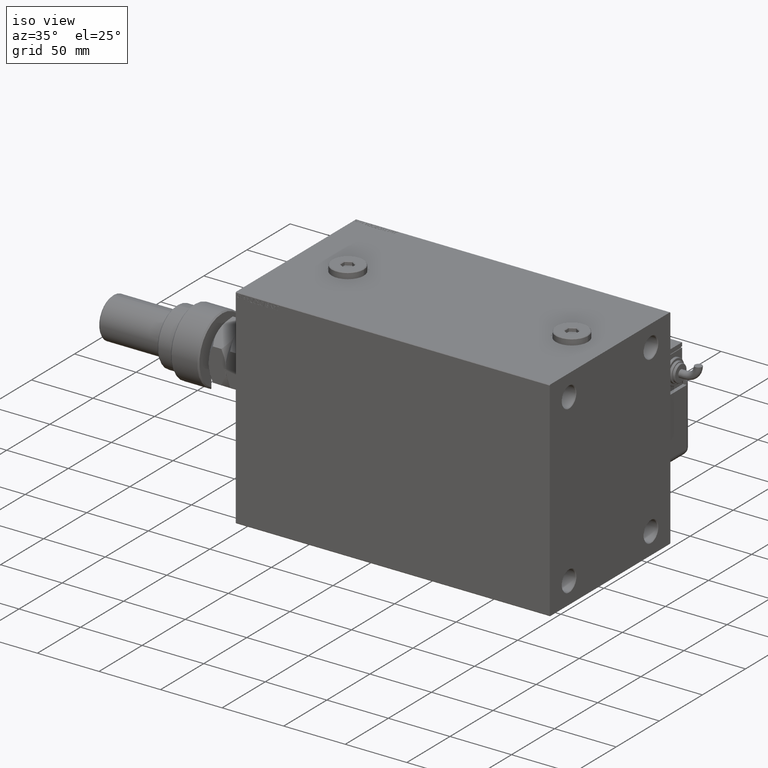
[diagram: clean part render]
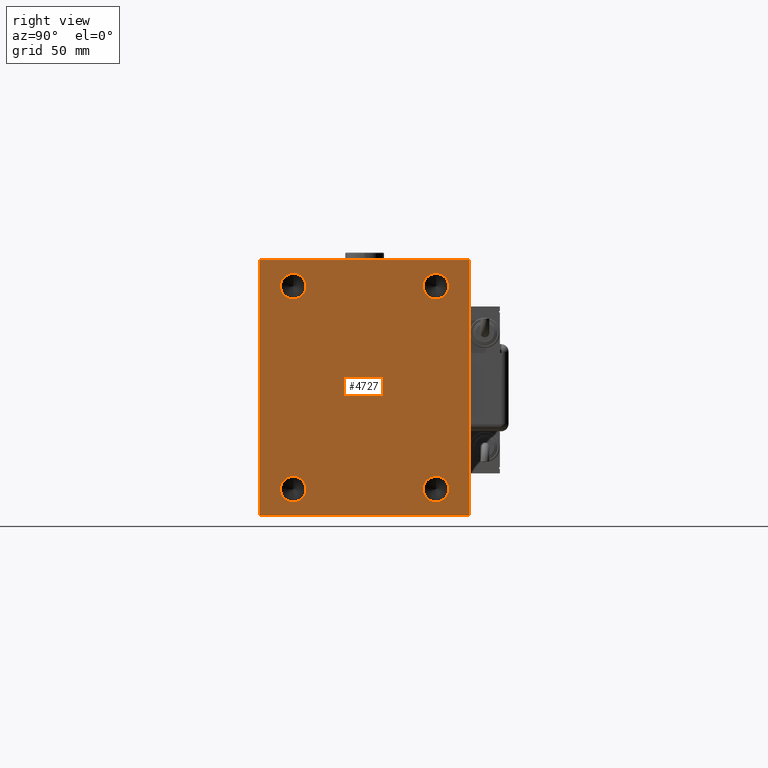
[diagram: tour spotlight — one face highlighted and labeled with its STEP entity id]
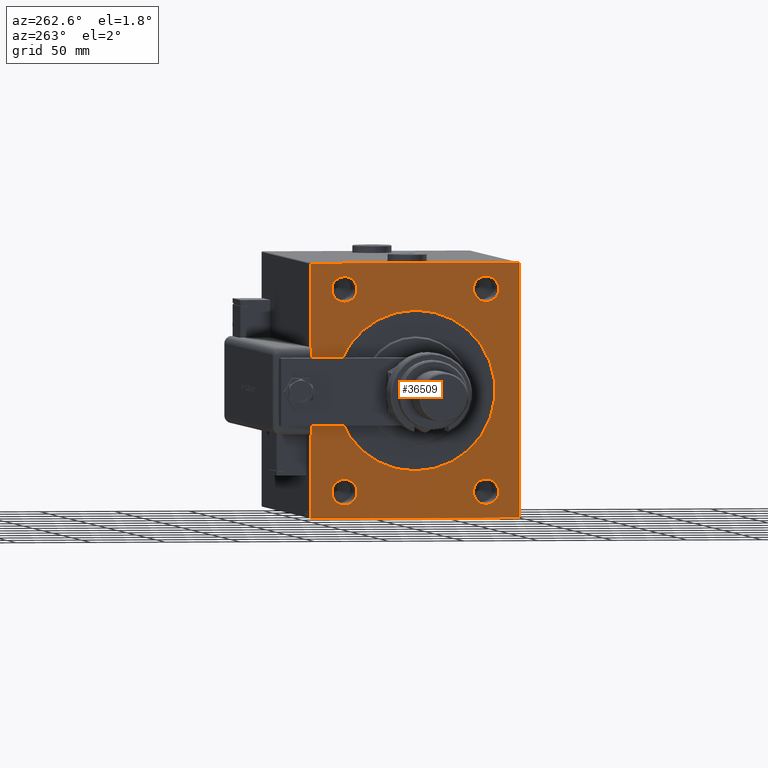
[diagram: tour spotlight — one face highlighted and labeled with its STEP entity id]
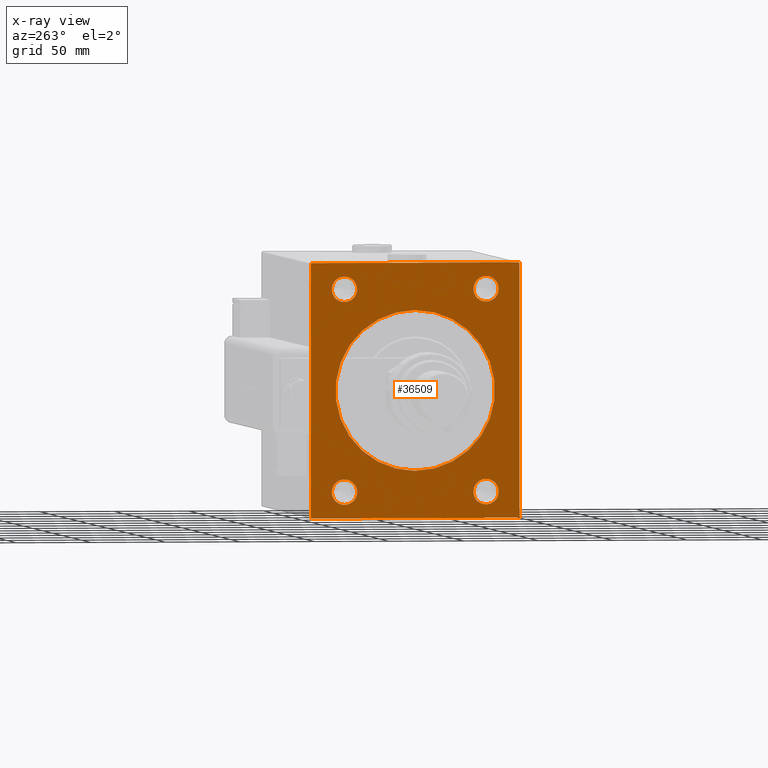
[diagram: x-ray of the same camera — body ghosted, this tour face saturated]
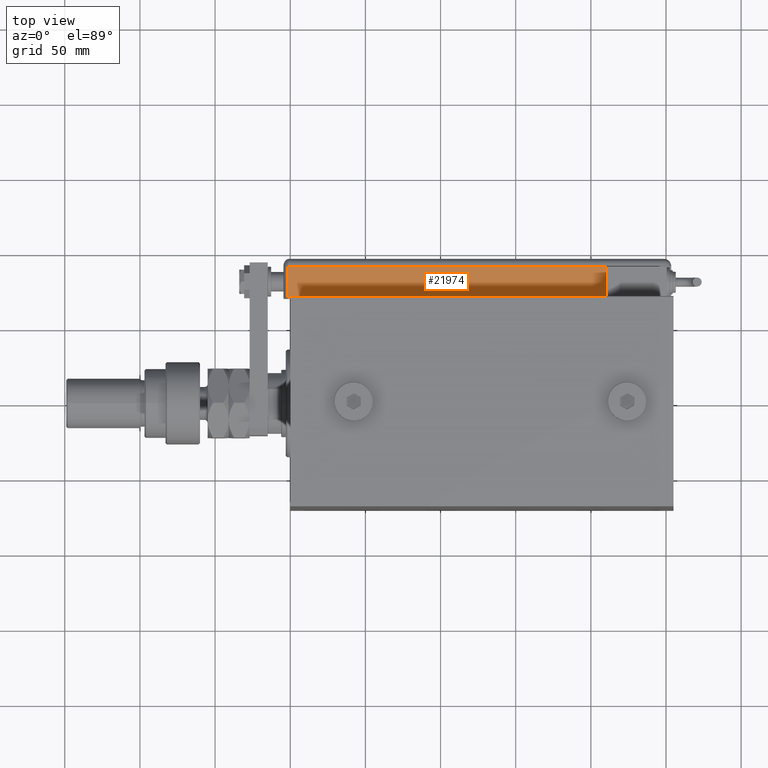
[diagram: tour spotlight — one face highlighted and labeled with its STEP entity id]
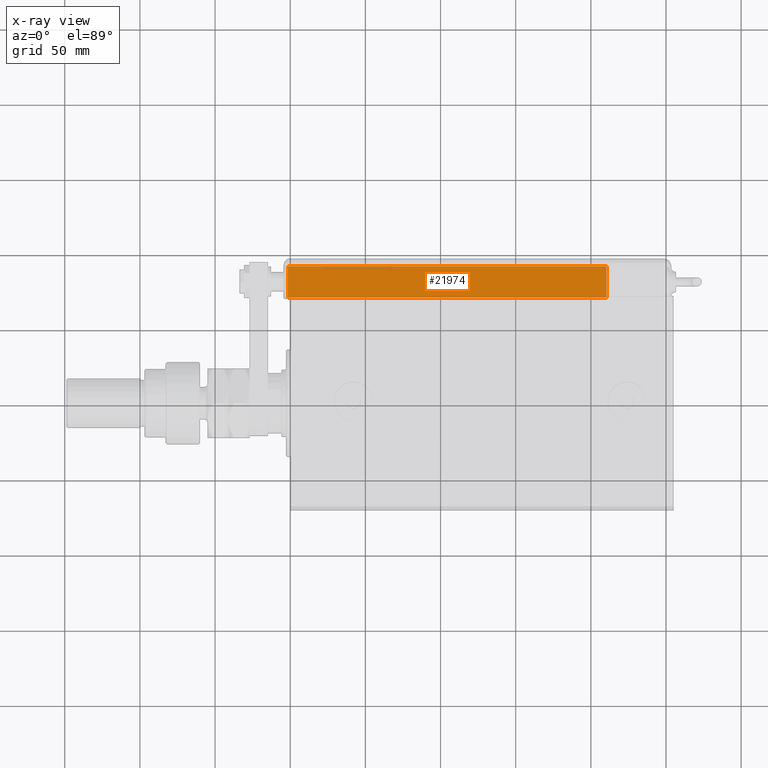
[diagram: x-ray of the same camera — body ghosted, this tour face saturated]
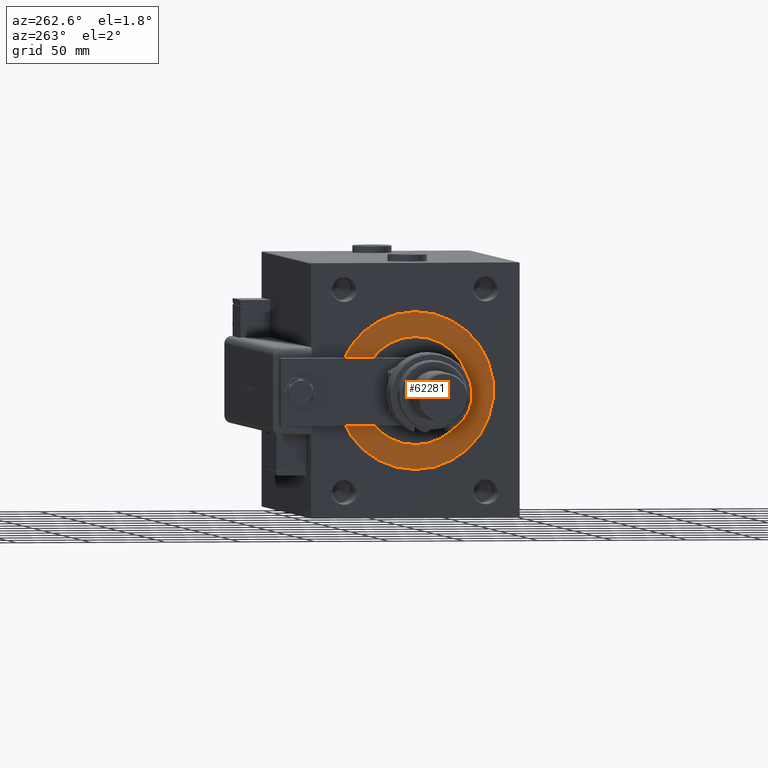
[diagram: tour spotlight — one face highlighted and labeled with its STEP entity id]
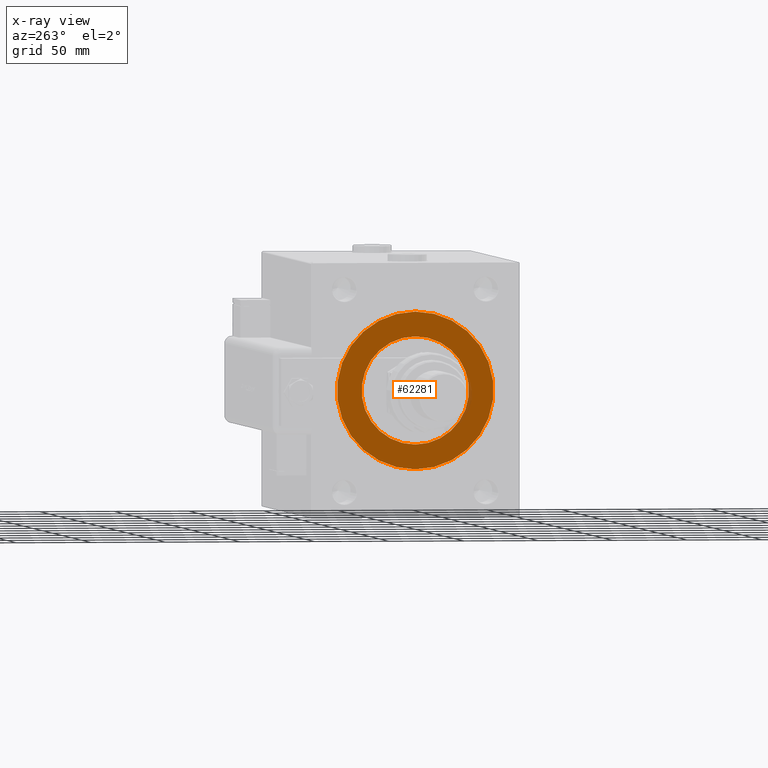
[diagram: x-ray of the same camera — body ghosted, this tour face saturated]
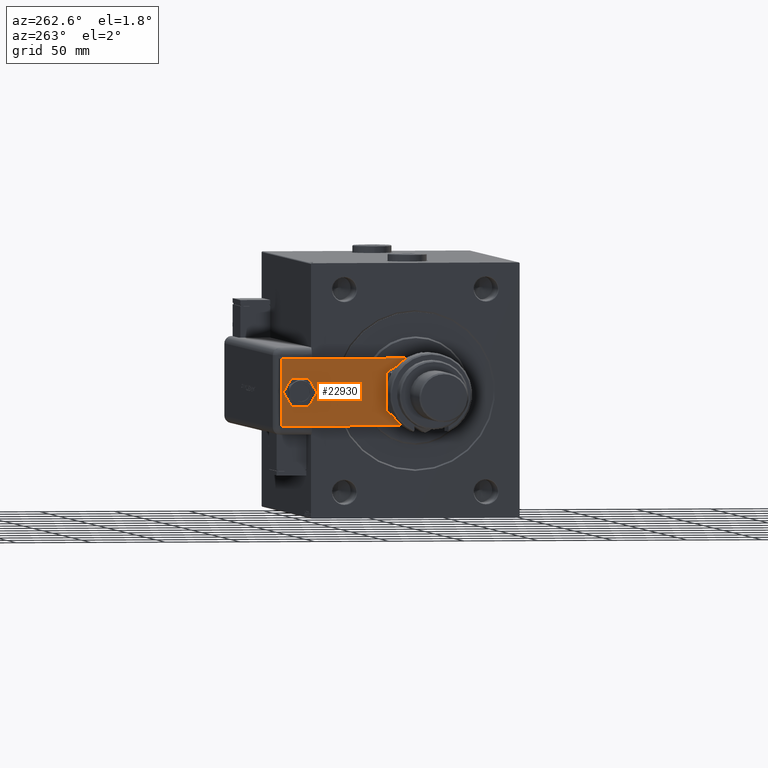
[diagram: tour spotlight — one face highlighted and labeled with its STEP entity id]
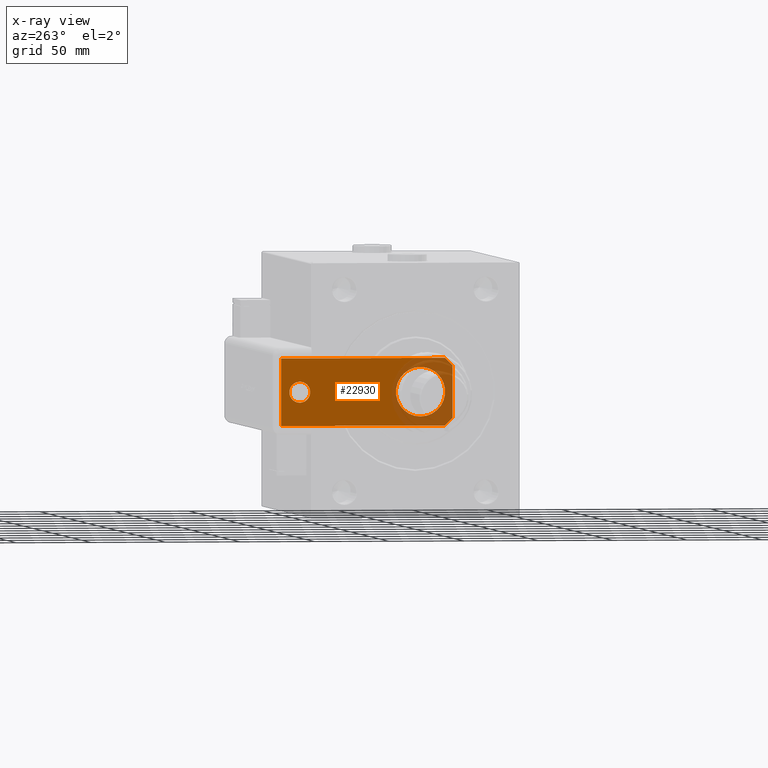
[diagram: x-ray of the same camera — body ghosted, this tour face saturated]
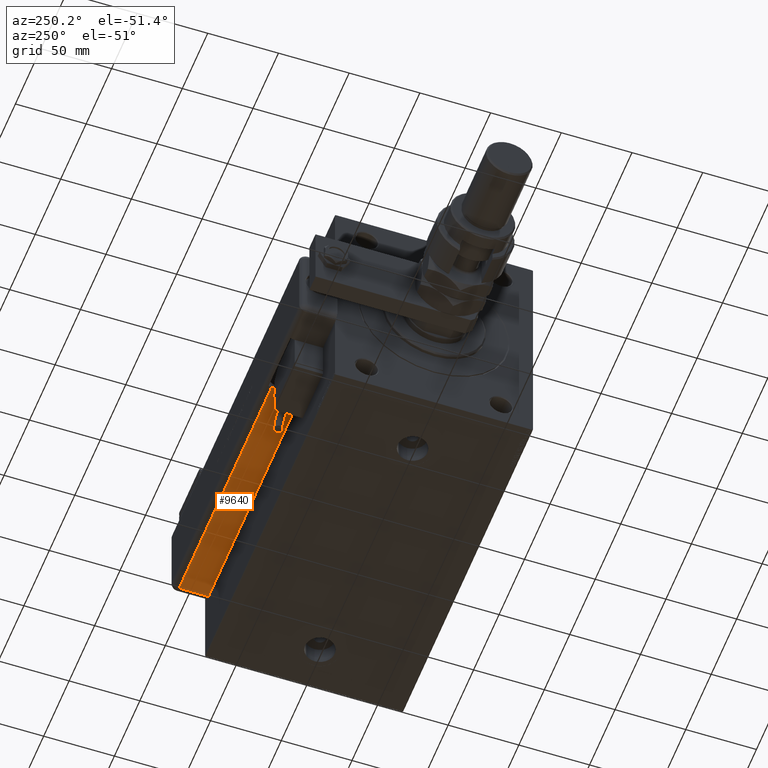
[diagram: tour spotlight — one face highlighted and labeled with its STEP entity id]
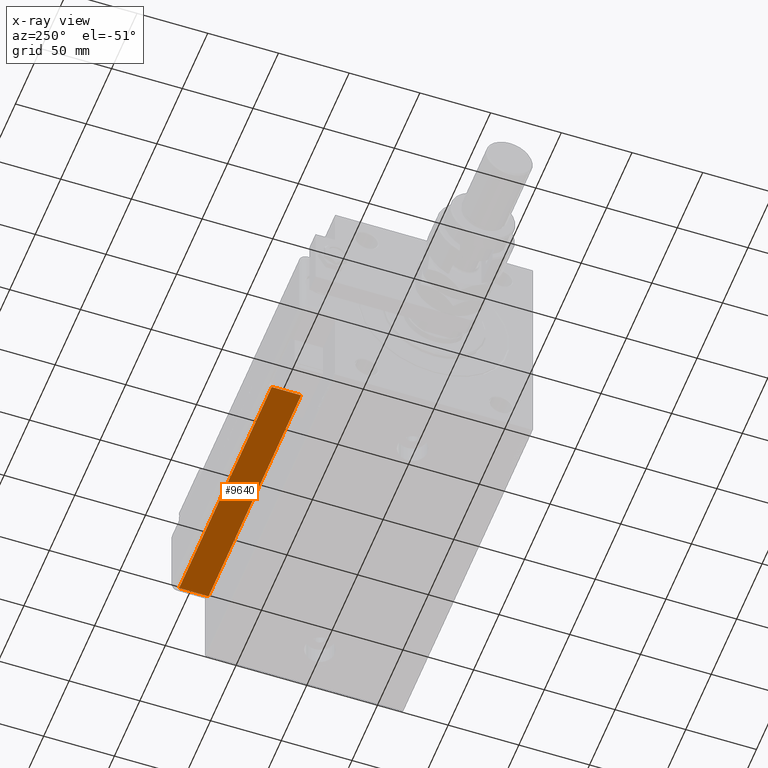
[diagram: x-ray of the same camera — body ghosted, this tour face saturated]
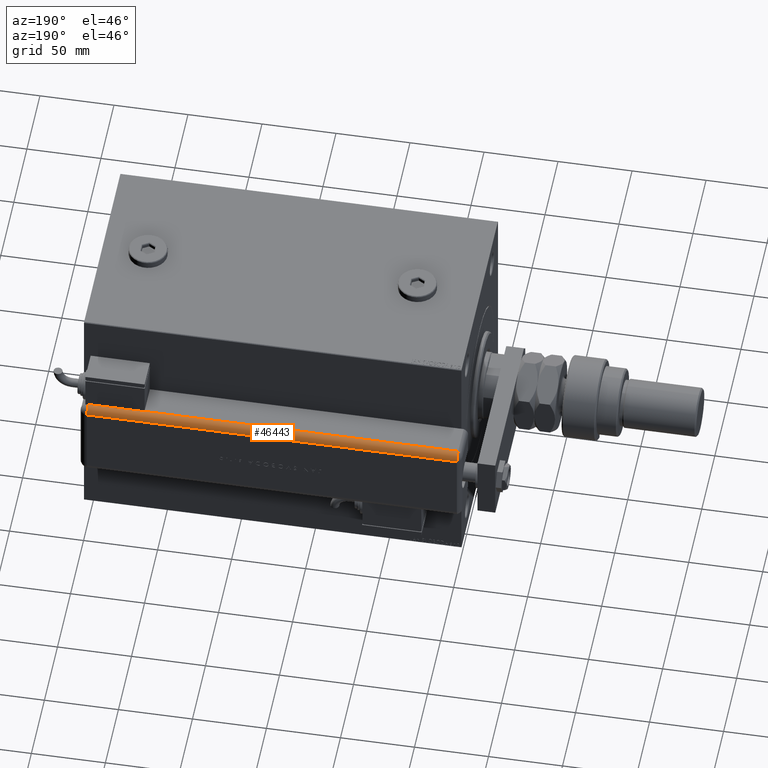
[diagram: tour spotlight — one face highlighted and labeled with its STEP entity id]
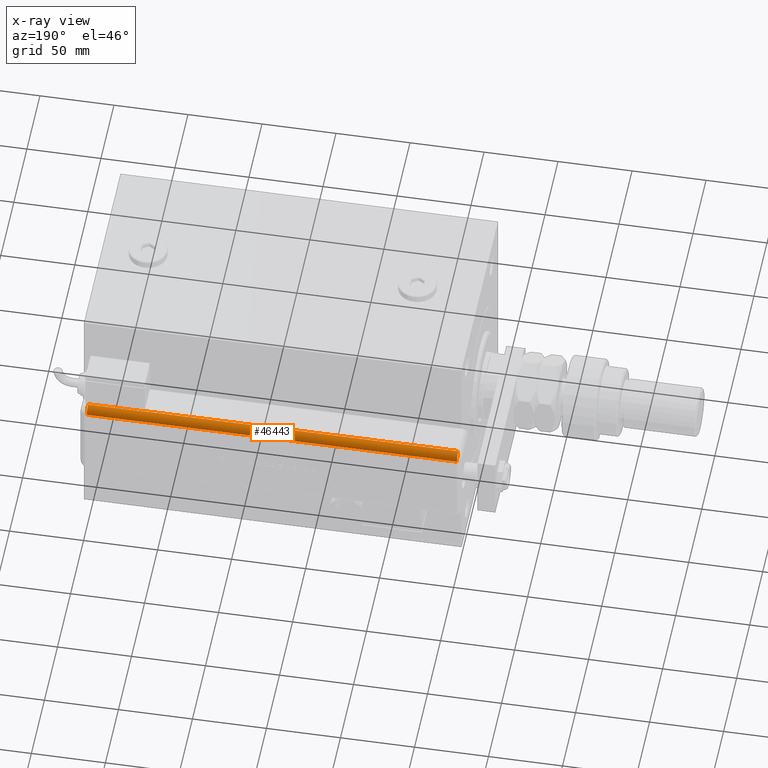
[diagram: x-ray of the same camera — body ghosted, this tour face saturated]
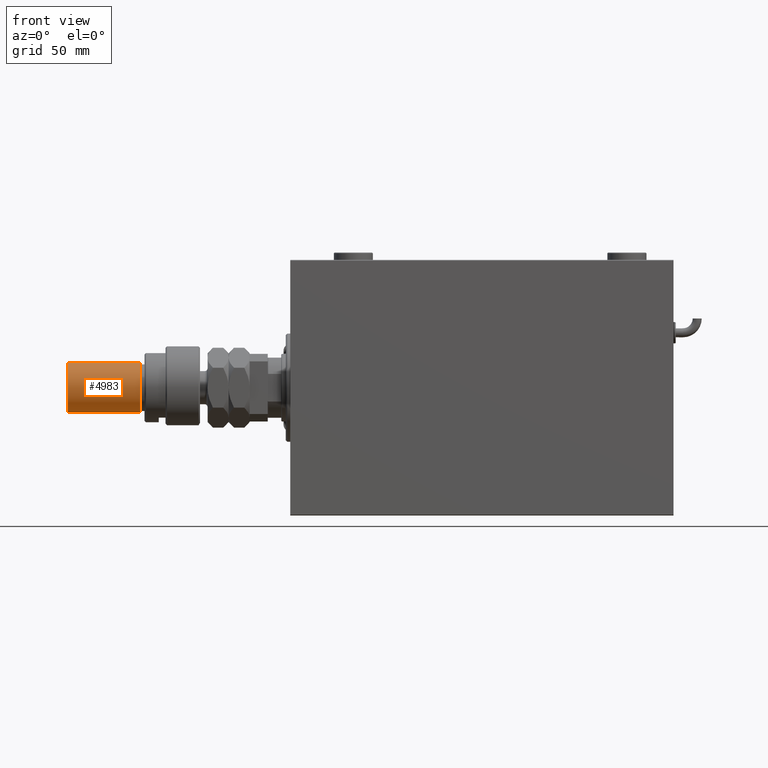
[diagram: tour spotlight — one face highlighted and labeled with its STEP entity id]
A machine part: a face-by-face anatomy tour. The part has 1407 B-rep faces; the first image is the clean iso view, then the 8 largest visible faces are spotlighted one at a time (largest first), each with its STEP entity span.

Face 1 — right view, entity #4727. In plain terms, the highlighted planar face has unit normal (1, 0, 0).
Definition (entity closure, byte-faithful):
#532 = EDGE_CURVE ( 'NONE', #47506, #33621, #5211, .T. ) ;
#723 = CARTESIAN_POINT ( 'NONE',  ( 255.0000000000000000, 77.25000000000096634, 77.24999999999883471 ) ) ;
#955 = DIRECTION ( 'NONE',  ( 1.000000000000000000, -0.000000000000000000, -0.000000000000000000 ) ) ;
#3374 = DIRECTION ( 'NONE',  ( 0.000000000000000000, 0.000000000000000000, -1.000000000000000000 ) ) ;
#3599 = PLANE ( 'NONE',  #18920 ) ;
#3916 = CARTESIAN_POINT ( 'NONE',  ( 255.0000000000000000, -77.24999999999803890, 77.25000000000234479 ) ) ;
#4141 = EDGE_CURVE ( 'NONE', #30359, #51126, #60449, .T. ) ;
#4727 = ADVANCED_FACE ( 'NONE', ( #52417, #38090, #28958, #42642, #43285 ), #3599, .T. ) ;
#5113 = VERTEX_POINT ( 'NONE', #41844 ) ;
#5211 = CIRCLE ( 'NONE', #34431, 8.500000000000007105 ) ;
#5490 = LINE ( 'NONE', #50384, #55645 ) ;
#6430 = AXIS2_PLACEMENT_3D ( 'NONE', #18623, #59301, #24462 ) ;
#7071 = ORIENTED_EDGE ( 'NONE', *, *, #40573, .F. ) ;
#7158 = AXIS2_PLACEMENT_3D ( 'NONE', #63272, #22584, #3374 ) ;
#8369 = ORIENTED_EDGE ( 'NONE', *, *, #52331, .F. ) ;
#9329 = DIRECTION ( 'NONE',  ( 0.000000000000000000, 1.000000000000000000, 0.000000000000000000 ) ) ;
#9645 = CARTESIAN_POINT ( 'NONE',  ( 255.0000000000000000, -70.00000000000000000, 84.49999999999998579 ) ) ;
#9715 = DIRECTION ( 'NONE',  ( 0.000000000000000000, 0.000000000000000000, -1.000000000000000000 ) ) ;
#9845 = LINE ( 'NONE', #723, #31788 ) ;
#10709 = DIRECTION ( 'NONE',  ( 0.000000000000000000, 0.000000000000000000, -1.000000000000000000 ) ) ;
#13442 = EDGE_CURVE ( 'NONE', #60324, #28680, #5490, .T. ) ;
#14430 = ORIENTED_EDGE ( 'NONE', *, *, #13442, .T. ) ;
#14525 = EDGE_LOOP ( 'NONE', ( #14430, #33789, #42348, #32775, #47168, #39436, #29237, #41949 ) ) ;
#14972 = CARTESIAN_POINT ( 'NONE',  ( 255.0000000000000000, 47.50000000000000000, 67.49999999999998579 ) ) ;
#15582 = EDGE_LOOP ( 'NONE', ( #52087, #48207 ) ) ;
#15894 = LINE ( 'NONE', #34219, #51448 ) ;
#16158 = EDGE_CURVE ( 'NONE', #61958, #21499, #15894, .T. ) ;
#16210 = DIRECTION ( 'NONE',  ( 0.000000000000000000, -8.163404592832031500E-17, 1.000000000000000000 ) ) ;
#16623 = EDGE_CURVE ( 'NONE', #16656, #54973, #60798, .T. ) ;
#16656 = VERTEX_POINT ( 'NONE', #53124 ) ;
#17029 = CARTESIAN_POINT ( 'NONE',  ( 255.0000000000000000, 69.50000000000005684, -85.00000000000000000 ) ) ;
#17931 = CARTESIAN_POINT ( 'NONE',  ( 255.0000000000000000, -69.49999999999995737, -85.00000000000000000 ) ) ;
#18623 = CARTESIAN_POINT ( 'NONE',  ( 255.0000000000000000, -47.50000000000000000, 67.49999999999998579 ) ) ;
#18678 = EDGE_CURVE ( 'NONE', #21499, #60324, #9845, .T. ) ;
#18768 = DIRECTION ( 'NONE',  ( 0.000000000000000000, 0.000000000000000000, -1.000000000000000000 ) ) ;
#18920 = AXIS2_PLACEMENT_3D ( 'NONE', #33513, #27677, #48813 ) ;
#20164 = DIRECTION ( 'NONE',  ( 0.000000000000000000, 0.000000000000000000, -1.000000000000000000 ) ) ;
#20448 = CARTESIAN_POINT ( 'NONE',  ( 255.0000000000000000, 70.00000000000001421, -84.50000000000002842 ) ) ;
#21499 = VERTEX_POINT ( 'NONE', #52764 ) ;
#22584 = DIRECTION ( 'NONE',  ( 1.000000000000000000, -0.000000000000000000, -0.000000000000000000 ) ) ;
#23513 = DIRECTION ( 'NONE',  ( 1.000000000000000000, -0.000000000000000000, -0.000000000000000000 ) ) ;
#23654 = CARTESIAN_POINT ( 'NONE',  ( 255.0000000000000000, 47.50000000000000000, -67.50000000000001421 ) ) ;
#23759 = DIRECTION ( 'NONE',  ( 0.000000000000000000, -0.7071067811865672237, -0.7071067811865279218 ) ) ;
#23955 = CARTESIAN_POINT ( 'NONE',  ( 255.0000000000000000, 47.50000000000000000, 67.49999999999998579 ) ) ;
#24361 = EDGE_CURVE ( 'NONE', #47268, #25588, #45690, .T. ) ;
#24462 = DIRECTION ( 'NONE',  ( 0.000000000000000000, 0.000000000000000000, -1.000000000000000000 ) ) ;
#25588 = VERTEX_POINT ( 'NONE', #17931 ) ;
#26249 = CARTESIAN_POINT ( 'NONE',  ( 255.0000000000000000, 69.49999999999997158, 85.00000000000001421 ) ) ;
#27478 = EDGE_CURVE ( 'NONE', #33621, #47506, #38121, .T. ) ;
#27677 = DIRECTION ( 'NONE',  ( 1.000000000000000000, 0.000000000000000000, 0.000000000000000000 ) ) ;
#28582 = CIRCLE ( 'NONE', #58715, 8.500000000000007105 ) ;
#28680 = VERTEX_POINT ( 'NONE', #45797 ) ;
#28727 = EDGE_CURVE ( 'NONE', #38788, #61958, #41545, .T. ) ;
#28775 = VECTOR ( 'NONE', #32108, 999.9999999999998863 ) ;
#28826 = DIRECTION ( 'NONE',  ( 1.000000000000000000, -0.000000000000000000, -0.000000000000000000 ) ) ;
#28958 = FACE_BOUND ( 'NONE', #48523, .T. ) ;
#29237 = ORIENTED_EDGE ( 'NONE', *, *, #16158, .T. ) ;
#30359 = VERTEX_POINT ( 'NONE', #61277 ) ;
#30456 = CARTESIAN_POINT ( 'NONE',  ( 255.0000000000000000, -70.00000000000000000, -85.00000000000000000 ) ) ;
#30518 = CARTESIAN_POINT ( 'NONE',  ( 255.0000000000000000, -47.50000000000000000, -59.00000000000002132 ) ) ;
#31424 = EDGE_LOOP ( 'NONE', ( #7071, #58152 ) ) ;
#31788 = VECTOR ( 'NONE', #45614, 1000.000000000000000 ) ;
#32108 = DIRECTION ( 'NONE',  ( -0.000000000000000000, 0.7071067811865376918, 0.7071067811865574537 ) ) ;
#32188 = ORIENTED_EDGE ( 'NONE', *, *, #50201, .F. ) ;
#32283 = VECTOR ( 'NONE', #23759, 1000.000000000000000 ) ;
#32355 = EDGE_CURVE ( 'NONE', #25588, #38788, #49990, .T. ) ;
#32775 = ORIENTED_EDGE ( 'NONE', *, *, #24361, .T. ) ;
#33338 = DIRECTION ( 'NONE',  ( 0.000000000000000000, 0.000000000000000000, -1.000000000000000000 ) ) ;
#33502 = LINE ( 'NONE', #3916, #32283 ) ;
#33513 = CARTESIAN_POINT ( 'NONE',  ( 255.0000000000000000, 0.000000000000000000, 0.000000000000000000 ) ) ;
#33621 = VERTEX_POINT ( 'NONE', #34951 ) ;
#33789 = ORIENTED_EDGE ( 'NONE', *, *, #41648, .T. ) ;
#34219 = CARTESIAN_POINT ( 'NONE',  ( 255.0000000000000000, 70.00000000000001421, -85.00000000000000000 ) ) ;
#34431 = AXIS2_PLACEMENT_3D ( 'NONE', #14972, #955, #10709 ) ;
#34489 = CIRCLE ( 'NONE', #6430, 8.500000000000007105 ) ;
#34951 = CARTESIAN_POINT ( 'NONE',  ( 255.0000000000000000, 47.50000000000000000, 75.99999999999998579 ) ) ;
#35491 = VECTOR ( 'NONE', #20164, 1000.000000000000000 ) ;
#35904 = CIRCLE ( 'NONE', #57777, 8.500000000000007105 ) ;
#36058 = EDGE_LOOP ( 'NONE', ( #8369, #53433 ) ) ;
#36666 = CARTESIAN_POINT ( 'NONE',  ( 255.0000000000000000, 77.25000000000099476, -77.24999999999884892 ) ) ;
#38090 = FACE_BOUND ( 'NONE', #31424, .T. ) ;
#38121 = CIRCLE ( 'NONE', #64132, 8.500000000000007105 ) ;
#38788 = VERTEX_POINT ( 'NONE', #17029 ) ;
#39204 = EDGE_CURVE ( 'NONE', #62972, #47268, #49447, .T. ) ;
#39335 = DIRECTION ( 'NONE',  ( 1.000000000000000000, -0.000000000000000000, -0.000000000000000000 ) ) ;
#39436 = ORIENTED_EDGE ( 'NONE', *, *, #28727, .T. ) ;
#39873 = DIRECTION ( 'NONE',  ( 0.000000000000000000, 0.000000000000000000, -1.000000000000000000 ) ) ;
#40301 = DIRECTION ( 'NONE',  ( 0.000000000000000000, -1.000000000000000000, -1.982541115402065110E-16 ) ) ;
#40386 = CARTESIAN_POINT ( 'NONE',  ( 255.0000000000000000, -47.50000000000000000, 75.99999999999998579 ) ) ;
#40573 = EDGE_CURVE ( 'NONE', #54973, #16656, #34489, .T. ) ;
#41545 = LINE ( 'NONE', #36666, #28775 ) ;
#41648 = EDGE_CURVE ( 'NONE', #28680, #62972, #33502, .T. ) ;
#41844 = CARTESIAN_POINT ( 'NONE',  ( 255.0000000000000000, -47.50000000000000000, -76.00000000000001421 ) ) ;
#41949 = ORIENTED_EDGE ( 'NONE', *, *, #18678, .T. ) ;
#42348 = ORIENTED_EDGE ( 'NONE', *, *, #39204, .T. ) ;
#42642 = FACE_BOUND ( 'NONE', #36058, .T. ) ;
#42944 = ORIENTED_EDGE ( 'NONE', *, *, #63602, .F. ) ;
#43249 = CARTESIAN_POINT ( 'NONE',  ( 255.0000000000000000, -47.50000000000000000, -67.50000000000001421 ) ) ;
#43285 = FACE_OUTER_BOUND ( 'NONE', #14525, .T. ) ;
#43344 = CARTESIAN_POINT ( 'NONE',  ( 255.0000000000000000, 47.50000000000000000, 59.00000000000000000 ) ) ;
#45614 = DIRECTION ( 'NONE',  ( -0.000000000000000000, -0.7071067811865378028, 0.7071067811865573427 ) ) ;
#45690 = LINE ( 'NONE', #61004, #51586 ) ;
#45797 = CARTESIAN_POINT ( 'NONE',  ( 255.0000000000000000, -69.49999999999997158, 84.99999999999998579 ) ) ;
#47168 = ORIENTED_EDGE ( 'NONE', *, *, #32355, .T. ) ;
#47268 = VERTEX_POINT ( 'NONE', #56876 ) ;
#47506 = VERTEX_POINT ( 'NONE', #43344 ) ;
#48060 = DIRECTION ( 'NONE',  ( 1.000000000000000000, -0.000000000000000000, -0.000000000000000000 ) ) ;
#48207 = ORIENTED_EDGE ( 'NONE', *, *, #532, .F. ) ;
#48523 = EDGE_LOOP ( 'NONE', ( #32188, #42944 ) ) ;
#48813 = DIRECTION ( 'NONE',  ( 0.000000000000000000, 0.000000000000000000, -1.000000000000000000 ) ) ;
#49009 = AXIS2_PLACEMENT_3D ( 'NONE', #57786, #63980, #33338 ) ;
#49447 = LINE ( 'NONE', #54352, #35491 ) ;
#49990 = LINE ( 'NONE', #30456, #64325 ) ;
#50201 = EDGE_CURVE ( 'NONE', #50402, #5113, #28582, .T. ) ;
#50384 = CARTESIAN_POINT ( 'NONE',  ( 255.0000000000000000, 70.00000000000000000, 85.00000000000001421 ) ) ;
#50402 = VERTEX_POINT ( 'NONE', #30518 ) ;
#51126 = VERTEX_POINT ( 'NONE', #53343 ) ;
#51448 = VECTOR ( 'NONE', #16210, 1000.000000000000000 ) ;
#51586 = VECTOR ( 'NONE', #60364, 1000.000000000000114 ) ;
#52087 = ORIENTED_EDGE ( 'NONE', *, *, #27478, .F. ) ;
#52331 = EDGE_CURVE ( 'NONE', #51126, #30359, #35904, .T. ) ;
#52417 = FACE_BOUND ( 'NONE', #15582, .T. ) ;
#52764 = CARTESIAN_POINT ( 'NONE',  ( 255.0000000000000000, 70.00000000000000000, 84.49999999999997158 ) ) ;
#53124 = CARTESIAN_POINT ( 'NONE',  ( 255.0000000000000000, -47.50000000000000000, 59.00000000000000000 ) ) ;
#53343 = CARTESIAN_POINT ( 'NONE',  ( 255.0000000000000000, 47.50000000000000000, -59.00000000000002132 ) ) ;
#53433 = ORIENTED_EDGE ( 'NONE', *, *, #4141, .F. ) ;
#54087 = CARTESIAN_POINT ( 'NONE',  ( 255.0000000000000000, -47.50000000000000000, 67.49999999999998579 ) ) ;
#54352 = CARTESIAN_POINT ( 'NONE',  ( 255.0000000000000000, -70.00000000000000000, 84.99999999999998579 ) ) ;
#54973 = VERTEX_POINT ( 'NONE', #40386 ) ;
#55645 = VECTOR ( 'NONE', #40301, 1000.000000000000000 ) ;
#56876 = CARTESIAN_POINT ( 'NONE',  ( 255.0000000000000000, -70.00000000000000000, -84.49999999999994316 ) ) ;
#57777 = AXIS2_PLACEMENT_3D ( 'NONE', #23654, #48060, #18768 ) ;
#57786 = CARTESIAN_POINT ( 'NONE',  ( 255.0000000000000000, 47.50000000000000000, -67.50000000000001421 ) ) ;
#58092 = CIRCLE ( 'NONE', #7158, 8.500000000000007105 ) ;
#58152 = ORIENTED_EDGE ( 'NONE', *, *, #16623, .F. ) ;
#58715 = AXIS2_PLACEMENT_3D ( 'NONE', #43249, #39335, #9715 ) ;
#59301 = DIRECTION ( 'NONE',  ( 1.000000000000000000, -0.000000000000000000, -0.000000000000000000 ) ) ;
#60324 = VERTEX_POINT ( 'NONE', #26249 ) ;
#60364 = DIRECTION ( 'NONE',  ( -0.000000000000000000, 0.7071067811865376918, -0.7071067811865573427 ) ) ;
#60449 = CIRCLE ( 'NONE', #49009, 8.500000000000007105 ) ;
#60798 = CIRCLE ( 'NONE', #61887, 8.500000000000007105 ) ;
#61004 = CARTESIAN_POINT ( 'NONE',  ( 255.0000000000000000, -77.25000000000093792, -77.24999999999880629 ) ) ;
#61277 = CARTESIAN_POINT ( 'NONE',  ( 255.0000000000000000, 47.50000000000000000, -76.00000000000001421 ) ) ;
#61887 = AXIS2_PLACEMENT_3D ( 'NONE', #54087, #23513, #62599 ) ;
#61958 = VERTEX_POINT ( 'NONE', #20448 ) ;
#62599 = DIRECTION ( 'NONE',  ( 0.000000000000000000, 0.000000000000000000, -1.000000000000000000 ) ) ;
#62972 = VERTEX_POINT ( 'NONE', #9645 ) ;
#63272 = CARTESIAN_POINT ( 'NONE',  ( 255.0000000000000000, -47.50000000000000000, -67.50000000000001421 ) ) ;
#63602 = EDGE_CURVE ( 'NONE', #5113, #50402, #58092, .T. ) ;
#63980 = DIRECTION ( 'NONE',  ( 1.000000000000000000, -0.000000000000000000, -0.000000000000000000 ) ) ;
#64132 = AXIS2_PLACEMENT_3D ( 'NONE', #23955, #28826, #39873 ) ;
#64325 = VECTOR ( 'NONE', #9329, 1000.000000000000000 ) ;

Face 2 — auxiliary view, entity #36509. An x-ray twin of the same camera follows (body ghosted, this face saturated) — the face is partly hidden behind the body. In plain terms, the highlighted planar face has unit normal (1, 0, 0).
Definition (entity closure, byte-faithful):
#393 = CARTESIAN_POINT ( 'NONE',  ( 0.000000000000000000, 47.50000000000000000, -67.50000000000001421 ) ) ;
#664 = ORIENTED_EDGE ( 'NONE', *, *, #47993, .T. ) ;
#668 = AXIS2_PLACEMENT_3D ( 'NONE', #44595, #30256, #50107 ) ;
#692 = VERTEX_POINT ( 'NONE', #31844 ) ;
#1238 = LINE ( 'NONE', #16204, #11241 ) ;
#1252 = DIRECTION ( 'NONE',  ( 0.000000000000000000, -0.7071067811865376918, -0.7071067811865574537 ) ) ;
#1827 = VERTEX_POINT ( 'NONE', #56752 ) ;
#3168 = CARTESIAN_POINT ( 'NONE',  ( 0.000000000000000000, 47.50000000000000000, -76.00000000000002842 ) ) ;
#3191 = VERTEX_POINT ( 'NONE', #21792 ) ;
#3383 = ORIENTED_EDGE ( 'NONE', *, *, #49322, .F. ) ;
#3404 = EDGE_CURVE ( 'NONE', #1827, #27058, #24024, .T. ) ;
#3434 = DIRECTION ( 'NONE',  ( 0.000000000000000000, 0.000000000000000000, -1.000000000000000000 ) ) ;
#3561 = EDGE_CURVE ( 'NONE', #12058, #30184, #59825, .T. ) ;
#4148 = EDGE_CURVE ( 'NONE', #3191, #21351, #31329, .T. ) ;
#4557 = ORIENTED_EDGE ( 'NONE', *, *, #62725, .F. ) ;
#5494 = DIRECTION ( 'NONE',  ( -0.000000000000000000, 0.7071067811865672237, 0.7071067811865279218 ) ) ;
#5777 = DIRECTION ( 'NONE',  ( -0.000000000000000000, 0.7071067811865378028, -0.7071067811865573427 ) ) ;
#6432 = EDGE_LOOP ( 'NONE', ( #664, #15643 ) ) ;
#6484 = CARTESIAN_POINT ( 'NONE',  ( 0.000000000000000000, -47.50000000000000000, 76.00000000000000000 ) ) ;
#6934 = VECTOR ( 'NONE', #5494, 1000.000000000000000 ) ;
#7430 = AXIS2_PLACEMENT_3D ( 'NONE', #48011, #22962, #3434 ) ;
#8237 = LINE ( 'NONE', #29046, #64005 ) ;
#8263 = FACE_BOUND ( 'NONE', #62499, .T. ) ;
#8766 = EDGE_CURVE ( 'NONE', #48239, #30184, #59504, .T. ) ;
#9241 = DIRECTION ( 'NONE',  ( 0.000000000000000000, 0.000000000000000000, -1.000000000000000000 ) ) ;
#9432 = CARTESIAN_POINT ( 'NONE',  ( 0.000000000000000000, 47.50000000000000000, -67.50000000000001421 ) ) ;
#9761 = DIRECTION ( 'NONE',  ( 1.000000000000000000, 0.000000000000000000, 0.000000000000000000 ) ) ;
#11241 = VECTOR ( 'NONE', #31154, 1000.000000000000000 ) ;
#12058 = VERTEX_POINT ( 'NONE', #32255 ) ;
#12562 = AXIS2_PLACEMENT_3D ( 'NONE', #47970, #52206, #32346 ) ;
#13357 = VERTEX_POINT ( 'NONE', #58571 ) ;
#14132 = CIRCLE ( 'NONE', #668, 8.500000000000007105 ) ;
#14172 = ORIENTED_EDGE ( 'NONE', *, *, #42276, .T. ) ;
#14723 = CARTESIAN_POINT ( 'NONE',  ( 0.000000000000000000, 47.50000000000000000, 67.49999999999998579 ) ) ;
#14946 = DIRECTION ( 'NONE',  ( 0.000000000000000000, 0.000000000000000000, -1.000000000000000000 ) ) ;
#15089 = CARTESIAN_POINT ( 'NONE',  ( 0.000000000000000000, -47.50000000000000000, 58.99999999999998579 ) ) ;
#15261 = CARTESIAN_POINT ( 'NONE',  ( 0.000000000000000000, -47.50000000000000000, 67.49999999999998579 ) ) ;
#15643 = ORIENTED_EDGE ( 'NONE', *, *, #62331, .T. ) ;
#15900 = EDGE_LOOP ( 'NONE', ( #25871, #30539 ) ) ;
#16204 = CARTESIAN_POINT ( 'NONE',  ( 0.000000000000000000, 70.00000000000000000, 85.00000000000001421 ) ) ;
#16241 = AXIS2_PLACEMENT_3D ( 'NONE', #63210, #33220, #18590 ) ;
#16743 = VECTOR ( 'NONE', #1252, 999.9999999999998863 ) ;
#17714 = FACE_BOUND ( 'NONE', #15900, .T. ) ;
#17792 = EDGE_CURVE ( 'NONE', #54078, #692, #8237, .T. ) ;
#17813 = CIRCLE ( 'NONE', #27176, 8.500000000000007105 ) ;
#18025 = VECTOR ( 'NONE', #20102, 1000.000000000000000 ) ;
#18590 = DIRECTION ( 'NONE',  ( 0.000000000000000000, 0.000000000000000000, -1.000000000000000000 ) ) ;
#19532 = DIRECTION ( 'NONE',  ( 0.000000000000000000, 0.000000000000000000, -1.000000000000000000 ) ) ;
#19860 = EDGE_CURVE ( 'NONE', #27058, #1827, #64136, .T. ) ;
#20102 = DIRECTION ( 'NONE',  ( 0.000000000000000000, -8.163404592832031500E-17, 1.000000000000000000 ) ) ;
#20241 = DIRECTION ( 'NONE',  ( 0.000000000000000000, 0.000000000000000000, -1.000000000000000000 ) ) ;
#20788 = EDGE_LOOP ( 'NONE', ( #3383, #40111, #4557, #45227, #51326, #58484, #46936, #23797 ) ) ;
#21351 = VERTEX_POINT ( 'NONE', #30335 ) ;
#21792 = CARTESIAN_POINT ( 'NONE',  ( 0.000000000000000000, 0.000000000000000000, 53.50000000000002842 ) ) ;
#22124 = EDGE_LOOP ( 'NONE', ( #14172, #32066 ) ) ;
#22607 = FACE_BOUND ( 'NONE', #29977, .T. ) ;
#22962 = DIRECTION ( 'NONE',  ( 1.000000000000000000, 0.000000000000000000, 0.000000000000000000 ) ) ;
#23456 = CARTESIAN_POINT ( 'NONE',  ( 0.000000000000000000, 0.000000000000000000, 0.000000000000000000 ) ) ;
#23797 = ORIENTED_EDGE ( 'NONE', *, *, #17792, .T. ) ;
#24024 = CIRCLE ( 'NONE', #46853, 8.500000000000007105 ) ;
#24974 = CARTESIAN_POINT ( 'NONE',  ( 0.000000000000000000, 70.00000000000001421, -85.00000000000000000 ) ) ;
#25043 = VERTEX_POINT ( 'NONE', #62715 ) ;
#25865 = VERTEX_POINT ( 'NONE', #6484 ) ;
#25871 = ORIENTED_EDGE ( 'NONE', *, *, #57418, .T. ) ;
#25878 = AXIS2_PLACEMENT_3D ( 'NONE', #9432, #49133, #19532 ) ;
#26708 = CARTESIAN_POINT ( 'NONE',  ( 0.000000000000000000, 47.50000000000000000, 76.00000000000000000 ) ) ;
#27058 = VERTEX_POINT ( 'NONE', #39070 ) ;
#27146 = PLANE ( 'NONE',  #12562 ) ;
#27176 = AXIS2_PLACEMENT_3D ( 'NONE', #14723, #53779, #34564 ) ;
#27884 = CIRCLE ( 'NONE', #38279, 8.500000000000007105 ) ;
#28994 = CIRCLE ( 'NONE', #50810, 53.50000000000002842 ) ;
#29046 = CARTESIAN_POINT ( 'NONE',  ( 0.000000000000000000, -69.49999999999995737, -85.00000000000000000 ) ) ;
#29174 = EDGE_CURVE ( 'NONE', #54078, #13357, #38764, .T. ) ;
#29977 = EDGE_LOOP ( 'NONE', ( #62047, #33587 ) ) ;
#30184 = VERTEX_POINT ( 'NONE', #42454 ) ;
#30256 = DIRECTION ( 'NONE',  ( 1.000000000000000000, 0.000000000000000000, 0.000000000000000000 ) ) ;
#30293 = CIRCLE ( 'NONE', #63613, 8.500000000000007105 ) ;
#30335 = CARTESIAN_POINT ( 'NONE',  ( 0.000000000000000000, 6.551860375438343048E-15, -53.50000000000002842 ) ) ;
#30504 = CARTESIAN_POINT ( 'NONE',  ( 0.000000000000000000, 69.49999999999997158, 85.00000000000001421 ) ) ;
#30539 = ORIENTED_EDGE ( 'NONE', *, *, #42249, .T. ) ;
#31154 = DIRECTION ( 'NONE',  ( 0.000000000000000000, -1.000000000000000000, -1.982541115402065110E-16 ) ) ;
#31329 = CIRCLE ( 'NONE', #7430, 53.50000000000002842 ) ;
#31844 = CARTESIAN_POINT ( 'NONE',  ( 0.000000000000000000, -70.00000000000000000, -84.49999999999994316 ) ) ;
#32066 = ORIENTED_EDGE ( 'NONE', *, *, #34400, .T. ) ;
#32255 = CARTESIAN_POINT ( 'NONE',  ( 0.000000000000000000, 69.49999999999997158, 85.00000000000001421 ) ) ;
#32346 = DIRECTION ( 'NONE',  ( 0.000000000000000000, 0.000000000000000000, -1.000000000000000000 ) ) ;
#33220 = DIRECTION ( 'NONE',  ( 1.000000000000000000, 0.000000000000000000, 0.000000000000000000 ) ) ;
#33587 = ORIENTED_EDGE ( 'NONE', *, *, #3404, .T. ) ;
#33878 = CARTESIAN_POINT ( 'NONE',  ( 0.000000000000000000, -70.00000000000000000, -85.00000000000000000 ) ) ;
#34143 = DIRECTION ( 'NONE',  ( 1.000000000000000000, 0.000000000000000000, 0.000000000000000000 ) ) ;
#34400 = EDGE_CURVE ( 'NONE', #47205, #59035, #53969, .T. ) ;
#34438 = DIRECTION ( 'NONE',  ( 0.000000000000000000, 0.000000000000000000, -1.000000000000000000 ) ) ;
#34564 = DIRECTION ( 'NONE',  ( 0.000000000000000000, 0.000000000000000000, -1.000000000000000000 ) ) ;
#36509 = ADVANCED_FACE ( 'NONE', ( #8263, #22607, #56451, #17714, #37557, #62004 ), #27146, .F. ) ;
#37557 = FACE_BOUND ( 'NONE', #22124, .T. ) ;
#38029 = EDGE_CURVE ( 'NONE', #48239, #13357, #55288, .T. ) ;
#38279 = AXIS2_PLACEMENT_3D ( 'NONE', #63954, #53830, #9241 ) ;
#38764 = LINE ( 'NONE', #33878, #61035 ) ;
#38804 = DIRECTION ( 'NONE',  ( 1.000000000000000000, 0.000000000000000000, 0.000000000000000000 ) ) ;
#39070 = CARTESIAN_POINT ( 'NONE',  ( 0.000000000000000000, -47.50000000000000000, -59.00000000000001421 ) ) ;
#40111 = ORIENTED_EDGE ( 'NONE', *, *, #54249, .T. ) ;
#42027 = ORIENTED_EDGE ( 'NONE', *, *, #4148, .T. ) ;
#42249 = EDGE_CURVE ( 'NONE', #25043, #42377, #17813, .T. ) ;
#42276 = EDGE_CURVE ( 'NONE', #59035, #47205, #30293, .T. ) ;
#42377 = VERTEX_POINT ( 'NONE', #26708 ) ;
#42454 = CARTESIAN_POINT ( 'NONE',  ( 0.000000000000000000, 70.00000000000000000, 84.49999999999997158 ) ) ;
#42917 = DIRECTION ( 'NONE',  ( 1.000000000000000000, 0.000000000000000000, 0.000000000000000000 ) ) ;
#43050 = DIRECTION ( 'NONE',  ( -0.000000000000000000, -0.7071067811865376918, 0.7071067811865573427 ) ) ;
#43080 = VECTOR ( 'NONE', #57875, 1000.000000000000000 ) ;
#44205 = CARTESIAN_POINT ( 'NONE',  ( 0.000000000000000000, -47.50000000000000000, -67.50000000000001421 ) ) ;
#44595 = CARTESIAN_POINT ( 'NONE',  ( 0.000000000000000000, 47.50000000000000000, 67.49999999999998579 ) ) ;
#44874 = CARTESIAN_POINT ( 'NONE',  ( 0.000000000000000000, 70.00000000000001421, -84.50000000000002842 ) ) ;
#45227 = ORIENTED_EDGE ( 'NONE', *, *, #3561, .T. ) ;
#46600 = VERTEX_POINT ( 'NONE', #15089 ) ;
#46853 = AXIS2_PLACEMENT_3D ( 'NONE', #44205, #42917, #34438 ) ;
#46936 = ORIENTED_EDGE ( 'NONE', *, *, #29174, .F. ) ;
#47205 = VERTEX_POINT ( 'NONE', #3168 ) ;
#47970 = CARTESIAN_POINT ( 'NONE',  ( 0.000000000000000000, 0.000000000000000000, 0.000000000000000000 ) ) ;
#47993 = EDGE_CURVE ( 'NONE', #25865, #46600, #62814, .T. ) ;
#48011 = CARTESIAN_POINT ( 'NONE',  ( 0.000000000000000000, 0.000000000000000000, 0.000000000000000000 ) ) ;
#48094 = LINE ( 'NONE', #63418, #43080 ) ;
#48239 = VERTEX_POINT ( 'NONE', #57536 ) ;
#48274 = VERTEX_POINT ( 'NONE', #57861 ) ;
#49133 = DIRECTION ( 'NONE',  ( 1.000000000000000000, 0.000000000000000000, 0.000000000000000000 ) ) ;
#49322 = EDGE_CURVE ( 'NONE', #61506, #692, #48094, .T. ) ;
#50067 = CARTESIAN_POINT ( 'NONE',  ( 0.000000000000000000, -70.00000000000000000, 84.49999999999998579 ) ) ;
#50107 = DIRECTION ( 'NONE',  ( 0.000000000000000000, 0.000000000000000000, -1.000000000000000000 ) ) ;
#50810 = AXIS2_PLACEMENT_3D ( 'NONE', #23456, #9761, #63517 ) ;
#51326 = ORIENTED_EDGE ( 'NONE', *, *, #8766, .F. ) ;
#52206 = DIRECTION ( 'NONE',  ( 1.000000000000000000, 0.000000000000000000, 0.000000000000000000 ) ) ;
#52213 = DIRECTION ( 'NONE',  ( 0.000000000000000000, 1.000000000000000000, 0.000000000000000000 ) ) ;
#53779 = DIRECTION ( 'NONE',  ( 1.000000000000000000, 0.000000000000000000, 0.000000000000000000 ) ) ;
#53830 = DIRECTION ( 'NONE',  ( 1.000000000000000000, 0.000000000000000000, 0.000000000000000000 ) ) ;
#53969 = CIRCLE ( 'NONE', #25878, 8.500000000000007105 ) ;
#54078 = VERTEX_POINT ( 'NONE', #55883 ) ;
#54249 = EDGE_CURVE ( 'NONE', #61506, #48274, #54338, .T. ) ;
#54338 = LINE ( 'NONE', #50067, #6934 ) ;
#55186 = CARTESIAN_POINT ( 'NONE',  ( 0.000000000000000000, -70.00000000000000000, 84.49999999999998579 ) ) ;
#55288 = LINE ( 'NONE', #44874, #16743 ) ;
#55883 = CARTESIAN_POINT ( 'NONE',  ( 0.000000000000000000, -69.49999999999995737, -85.00000000000000000 ) ) ;
#56451 = FACE_BOUND ( 'NONE', #6432, .T. ) ;
#56655 = CARTESIAN_POINT ( 'NONE',  ( 0.000000000000000000, 47.50000000000000000, -59.00000000000001421 ) ) ;
#56752 = CARTESIAN_POINT ( 'NONE',  ( 0.000000000000000000, -47.50000000000000000, -76.00000000000002842 ) ) ;
#57418 = EDGE_CURVE ( 'NONE', #42377, #25043, #14132, .T. ) ;
#57536 = CARTESIAN_POINT ( 'NONE',  ( 0.000000000000000000, 70.00000000000001421, -84.50000000000002842 ) ) ;
#57861 = CARTESIAN_POINT ( 'NONE',  ( 0.000000000000000000, -69.49999999999997158, 84.99999999999998579 ) ) ;
#57875 = DIRECTION ( 'NONE',  ( 0.000000000000000000, 0.000000000000000000, -1.000000000000000000 ) ) ;
#58484 = ORIENTED_EDGE ( 'NONE', *, *, #38029, .T. ) ;
#58571 = CARTESIAN_POINT ( 'NONE',  ( 0.000000000000000000, 69.50000000000005684, -85.00000000000000000 ) ) ;
#59035 = VERTEX_POINT ( 'NONE', #56655 ) ;
#59392 = VECTOR ( 'NONE', #5777, 1000.000000000000000 ) ;
#59504 = LINE ( 'NONE', #24974, #18025 ) ;
#59686 = AXIS2_PLACEMENT_3D ( 'NONE', #15261, #34143, #14946 ) ;
#59825 = LINE ( 'NONE', #30504, #59392 ) ;
#60805 = ORIENTED_EDGE ( 'NONE', *, *, #63992, .T. ) ;
#61035 = VECTOR ( 'NONE', #52213, 1000.000000000000000 ) ;
#61506 = VERTEX_POINT ( 'NONE', #55186 ) ;
#62004 = FACE_OUTER_BOUND ( 'NONE', #20788, .T. ) ;
#62047 = ORIENTED_EDGE ( 'NONE', *, *, #19860, .T. ) ;
#62331 = EDGE_CURVE ( 'NONE', #46600, #25865, #27884, .T. ) ;
#62499 = EDGE_LOOP ( 'NONE', ( #42027, #60805 ) ) ;
#62715 = CARTESIAN_POINT ( 'NONE',  ( 0.000000000000000000, 47.50000000000000000, 58.99999999999998579 ) ) ;
#62725 = EDGE_CURVE ( 'NONE', #12058, #48274, #1238, .T. ) ;
#62814 = CIRCLE ( 'NONE', #59686, 8.500000000000007105 ) ;
#63210 = CARTESIAN_POINT ( 'NONE',  ( 0.000000000000000000, -47.50000000000000000, -67.50000000000001421 ) ) ;
#63418 = CARTESIAN_POINT ( 'NONE',  ( 0.000000000000000000, -70.00000000000000000, 84.99999999999998579 ) ) ;
#63517 = DIRECTION ( 'NONE',  ( 0.000000000000000000, 0.000000000000000000, -1.000000000000000000 ) ) ;
#63613 = AXIS2_PLACEMENT_3D ( 'NONE', #393, #38804, #20241 ) ;
#63954 = CARTESIAN_POINT ( 'NONE',  ( 0.000000000000000000, -47.50000000000000000, 67.49999999999998579 ) ) ;
#63992 = EDGE_CURVE ( 'NONE', #21351, #3191, #28994, .T. ) ;
#64005 = VECTOR ( 'NONE', #43050, 1000.000000000000114 ) ;
#64136 = CIRCLE ( 'NONE', #16241, 8.500000000000007105 ) ;

Face 3 — top view, entity #21974. An x-ray twin of the same camera follows (body ghosted, this face saturated) — the face is partly hidden behind the body. In plain terms, the highlighted planar face has unit normal (-0, -0, -1).
Definition (entity closure, byte-faithful):
#472 = VERTEX_POINT ( 'NONE', #53378 ) ;
#6938 = CARTESIAN_POINT ( 'NONE',  ( 28.99999999999999645, 0.000000000000000000, 43.00000000000000000 ) ) ;
#10335 = ORIENTED_EDGE ( 'NONE', *, *, #19144, .T. ) ;
#11985 = EDGE_CURVE ( 'NONE', #472, #54722, #51793, .T. ) ;
#12744 = CARTESIAN_POINT ( 'NONE',  ( 28.99999999999999645, 20.79999999999998295, 255.0000000000000000 ) ) ;
#15794 = DIRECTION ( 'NONE',  ( -1.000000000000000000, 0.000000000000000000, 0.000000000000000000 ) ) ;
#17873 = DIRECTION ( 'NONE',  ( -0.000000000000000000, -0.000000000000000000, 1.000000000000000000 ) ) ;
#19144 = EDGE_CURVE ( 'NONE', #472, #60777, #22761, .T. ) ;
#20359 = DIRECTION ( 'NONE',  ( 0.000000000000000000, 0.000000000000000000, 1.000000000000000000 ) ) ;
#21974 = ADVANCED_FACE ( 'NONE', ( #25230 ), #44454, .F. ) ;
#22761 = LINE ( 'NONE', #43552, #39093 ) ;
#24723 = ORIENTED_EDGE ( 'NONE', *, *, #44232, .T. ) ;
#25063 = ORIENTED_EDGE ( 'NONE', *, *, #11985, .F. ) ;
#25230 = FACE_OUTER_BOUND ( 'NONE', #57429, .T. ) ;
#25542 = CARTESIAN_POINT ( 'NONE',  ( 28.99999999999999645, 25.79999999999998295, 255.0000000000000000 ) ) ;
#25770 = DIRECTION ( 'NONE',  ( -0.000000000000000000, -1.000000000000000000, -0.000000000000000000 ) ) ;
#26999 = CARTESIAN_POINT ( 'NONE',  ( 28.99999999999999645, -9.421223957302265857E-15, 255.0000000000000000 ) ) ;
#27528 = VECTOR ( 'NONE', #25770, 1000.000000000000000 ) ;
#31564 = LINE ( 'NONE', #26999, #54297 ) ;
#31878 = EDGE_CURVE ( 'NONE', #47425, #60777, #43257, .T. ) ;
#38935 = CARTESIAN_POINT ( 'NONE',  ( 28.99999999999999645, -9.421223957302265857E-15, 255.0000000000000000 ) ) ;
#39093 = VECTOR ( 'NONE', #17873, 1000.000000000000000 ) ;
#43257 = LINE ( 'NONE', #43908, #59100 ) ;
#43552 = CARTESIAN_POINT ( 'NONE',  ( 28.99999999999999645, 20.79999999999998295, 255.0000000000000000 ) ) ;
#43908 = CARTESIAN_POINT ( 'NONE',  ( 28.99999999999999645, 25.79999999999998295, 255.0000000000000000 ) ) ;
#44232 = EDGE_CURVE ( 'NONE', #47425, #54722, #31564, .T. ) ;
#44454 = PLANE ( 'NONE',  #52531 ) ;
#46432 = ORIENTED_EDGE ( 'NONE', *, *, #31878, .F. ) ;
#47425 = VERTEX_POINT ( 'NONE', #38935 ) ;
#51417 = DIRECTION ( 'NONE',  ( -0.000000000000000000, -0.000000000000000000, -1.000000000000000000 ) ) ;
#51793 = LINE ( 'NONE', #61256, #27528 ) ;
#52531 = AXIS2_PLACEMENT_3D ( 'NONE', #25542, #15794, #20359 ) ;
#53378 = CARTESIAN_POINT ( 'NONE',  ( 28.99999999999999645, 20.79999999999998295, 43.00000000000000000 ) ) ;
#54297 = VECTOR ( 'NONE', #51417, 1000.000000000000000 ) ;
#54722 = VERTEX_POINT ( 'NONE', #6938 ) ;
#57429 = EDGE_LOOP ( 'NONE', ( #24723, #25063, #10335, #46432 ) ) ;
#57603 = DIRECTION ( 'NONE',  ( -0.000000000000000000, 1.000000000000000000, -0.000000000000000000 ) ) ;
#59100 = VECTOR ( 'NONE', #57603, 1000.000000000000000 ) ;
#60777 = VERTEX_POINT ( 'NONE', #12744 ) ;
#61256 = CARTESIAN_POINT ( 'NONE',  ( 28.99999999999999645, 0.000000000000000000, 43.00000000000000000 ) ) ;

Face 4 — auxiliary view, entity #62281. An x-ray twin of the same camera follows (body ghosted, this face saturated) — the face is partly hidden behind the body. In plain terms, the highlighted planar face has unit normal (1, -0, -0).
Definition (entity closure, byte-faithful):
#1918 = AXIS2_PLACEMENT_3D ( 'NONE', #19016, #43739, #34926 ) ;
#3042 = EDGE_CURVE ( 'NONE', #12374, #9305, #45836, .T. ) ;
#3646 = ORIENTED_EDGE ( 'NONE', *, *, #11399, .F. ) ;
#4273 = CARTESIAN_POINT ( 'NONE',  ( 0.000000000000000000, 6.429395695523603167E-15, 52.49999999999999289 ) ) ;
#6498 = CARTESIAN_POINT ( 'NONE',  ( 0.000000000000000000, 0.000000000000000000, 0.000000000000000000 ) ) ;
#7625 = PLANE ( 'NONE',  #1918 ) ;
#9305 = VERTEX_POINT ( 'NONE', #4273 ) ;
#10751 = EDGE_LOOP ( 'NONE', ( #17733, #3646 ) ) ;
#11399 = EDGE_CURVE ( 'NONE', #63539, #57610, #48301, .T. ) ;
#12374 = VERTEX_POINT ( 'NONE', #49813 ) ;
#14866 = DIRECTION ( 'NONE',  ( 1.000000000000000000, -0.000000000000000000, 0.000000000000000000 ) ) ;
#15466 = CARTESIAN_POINT ( 'NONE',  ( 0.000000000000000000, 0.000000000000000000, 36.00000000000000000 ) ) ;
#16511 = AXIS2_PLACEMENT_3D ( 'NONE', #59472, #14866, #20068 ) ;
#17733 = ORIENTED_EDGE ( 'NONE', *, *, #32415, .F. ) ;
#19016 = CARTESIAN_POINT ( 'NONE',  ( 0.000000000000000000, 0.000000000000000000, 0.000000000000000000 ) ) ;
#19235 = AXIS2_PLACEMENT_3D ( 'NONE', #36649, #47064, #21703 ) ;
#20068 = DIRECTION ( 'NONE',  ( 0.000000000000000000, 0.000000000000000000, -1.000000000000000000 ) ) ;
#20828 = DIRECTION ( 'NONE',  ( -1.000000000000000000, 0.000000000000000000, 0.000000000000000000 ) ) ;
#21453 = AXIS2_PLACEMENT_3D ( 'NONE', #54026, #29288, #39049 ) ;
#21703 = DIRECTION ( 'NONE',  ( 0.000000000000000000, 0.000000000000000000, -1.000000000000000000 ) ) ;
#23003 = AXIS2_PLACEMENT_3D ( 'NONE', #6498, #20828, #50750 ) ;
#23683 = EDGE_CURVE ( 'NONE', #9305, #12374, #52625, .T. ) ;
#29288 = DIRECTION ( 'NONE',  ( -1.000000000000000000, 0.000000000000000000, 0.000000000000000000 ) ) ;
#32357 = FACE_BOUND ( 'NONE', #10751, .T. ) ;
#32415 = EDGE_CURVE ( 'NONE', #57610, #63539, #55997, .T. ) ;
#34926 = DIRECTION ( 'NONE',  ( 0.000000000000000000, 0.000000000000000000, 1.000000000000000000 ) ) ;
#36649 = CARTESIAN_POINT ( 'NONE',  ( 0.000000000000000000, 0.000000000000000000, 0.000000000000000000 ) ) ;
#39049 = DIRECTION ( 'NONE',  ( 0.000000000000000000, 0.000000000000000000, 1.000000000000000000 ) ) ;
#43739 = DIRECTION ( 'NONE',  ( -1.000000000000000000, 0.000000000000000000, 0.000000000000000000 ) ) ;
#45836 = CIRCLE ( 'NONE', #23003, 52.49999999999999289 ) ;
#47064 = DIRECTION ( 'NONE',  ( 1.000000000000000000, -0.000000000000000000, 0.000000000000000000 ) ) ;
#48090 = ORIENTED_EDGE ( 'NONE', *, *, #3042, .F. ) ;
#48301 = CIRCLE ( 'NONE', #19235, 36.00000000000000000 ) ;
#49813 = CARTESIAN_POINT ( 'NONE',  ( 0.000000000000000000, 0.000000000000000000, -52.49999999999999289 ) ) ;
#50750 = DIRECTION ( 'NONE',  ( 0.000000000000000000, 0.000000000000000000, 1.000000000000000000 ) ) ;
#52216 = FACE_OUTER_BOUND ( 'NONE', #62416, .T. ) ;
#52625 = CIRCLE ( 'NONE', #21453, 52.49999999999999289 ) ;
#54026 = CARTESIAN_POINT ( 'NONE',  ( 0.000000000000000000, 0.000000000000000000, 0.000000000000000000 ) ) ;
#55997 = CIRCLE ( 'NONE', #16511, 36.00000000000000000 ) ;
#57284 = ORIENTED_EDGE ( 'NONE', *, *, #23683, .F. ) ;
#57610 = VERTEX_POINT ( 'NONE', #15466 ) ;
#59472 = CARTESIAN_POINT ( 'NONE',  ( 0.000000000000000000, 0.000000000000000000, 0.000000000000000000 ) ) ;
#62281 = ADVANCED_FACE ( 'NONE', ( #32357, #52216 ), #7625, .F. ) ;
#62416 = EDGE_LOOP ( 'NONE', ( #48090, #57284 ) ) ;
#62941 = CARTESIAN_POINT ( 'NONE',  ( 0.000000000000000000, 4.408728476930470856E-15, -36.00000000000000000 ) ) ;
#63539 = VERTEX_POINT ( 'NONE', #62941 ) ;

Face 5 — auxiliary view, entity #22930. An x-ray twin of the same camera follows (body ghosted, this face saturated) — the face is partly hidden behind the body. In plain terms, the highlighted planar face has unit normal (1, -0, -0).
Definition (entity closure, byte-faithful):
#847 = DIRECTION ( 'NONE',  ( 1.000000000000000000, 0.000000000000000000, 0.000000000000000000 ) ) ;
#1127 = DIRECTION ( 'NONE',  ( 0.000000000000000000, 0.000000000000000000, 1.000000000000000000 ) ) ;
#2322 = VECTOR ( 'NONE', #15862, 1000.000000000000000 ) ;
#3185 = CARTESIAN_POINT ( 'NONE',  ( -22.50000000000000355, 115.0000000000000000, 0.000000000000000000 ) ) ;
#3503 = AXIS2_PLACEMENT_3D ( 'NONE', #4139, #18781, #38618 ) ;
#3844 = DIRECTION ( 'NONE',  ( -0.000000000000000000, 0.000000000000000000, 1.000000000000000000 ) ) ;
#4139 = CARTESIAN_POINT ( 'NONE',  ( 0.000000000000000000, 21.50000000000000355, 0.000000000000000000 ) ) ;
#4162 = FACE_BOUND ( 'NONE', #17105, .T. ) ;
#5380 = CARTESIAN_POINT ( 'NONE',  ( 1.963948872468190046E-17, 102.5000000000000142, 0.000000000000000000 ) ) ;
#5970 = VECTOR ( 'NONE', #18915, 1000.000000000000114 ) ;
#6108 = EDGE_CURVE ( 'NONE', #25216, #52845, #46736, .T. ) ;
#6929 = ORIENTED_EDGE ( 'NONE', *, *, #47410, .T. ) ;
#7651 = LINE ( 'NONE', #32059, #40691 ) ;
#8114 = CARTESIAN_POINT ( 'NONE',  ( 7.000000000000000000, 102.5000000000000142, 0.000000000000000000 ) ) ;
#8617 = ORIENTED_EDGE ( 'NONE', *, *, #38673, .F. ) ;
#8689 = CIRCLE ( 'NONE', #3503, 16.50000000000000000 ) ;
#8895 = EDGE_CURVE ( 'NONE', #37233, #28914, #49190, .T. ) ;
#9184 = CARTESIAN_POINT ( 'NONE',  ( -17.50000000000000355, 0.000000000000000000, 0.000000000000000000 ) ) ;
#11942 = ORIENTED_EDGE ( 'NONE', *, *, #30507, .F. ) ;
#13535 = VERTEX_POINT ( 'NONE', #55286 ) ;
#14093 = VECTOR ( 'NONE', #33316, 1000.000000000000000 ) ;
#14138 = CIRCLE ( 'NONE', #17298, 16.50000000000000000 ) ;
#14192 = ORIENTED_EDGE ( 'NONE', *, *, #27179, .T. ) ;
#14235 = CARTESIAN_POINT ( 'NONE',  ( 0.000000000000000000, 0.000000000000000000, 0.000000000000000000 ) ) ;
#15862 = DIRECTION ( 'NONE',  ( 1.000000000000000000, 0.000000000000000000, 0.000000000000000000 ) ) ;
#17105 = EDGE_LOOP ( 'NONE', ( #27682, #46621 ) ) ;
#17134 = CARTESIAN_POINT ( 'NONE',  ( -22.50000000000001066, 0.000000000000000000, 0.000000000000000000 ) ) ;
#17298 = AXIS2_PLACEMENT_3D ( 'NONE', #30135, #25880, #847 ) ;
#18781 = DIRECTION ( 'NONE',  ( 0.000000000000000000, 0.000000000000000000, 1.000000000000000000 ) ) ;
#18915 = DIRECTION ( 'NONE',  ( -0.7071067811865455743, 0.7071067811865493491, -0.000000000000000000 ) ) ;
#19586 = DIRECTION ( 'NONE',  ( -6.033820786006285224E-17, -1.000000000000000000, 0.000000000000000000 ) ) ;
#22201 = VERTEX_POINT ( 'NONE', #51803 ) ;
#22930 = ADVANCED_FACE ( 'NONE', ( #33748, #4162, #28549 ), #48408, .F. ) ;
#24697 = EDGE_CURVE ( 'NONE', #50377, #52845, #58539, .T. ) ;
#25007 = CARTESIAN_POINT ( 'NONE',  ( 22.50000000000001066, 5.000000000000003553, 0.000000000000000000 ) ) ;
#25216 = VERTEX_POINT ( 'NONE', #9184 ) ;
#25548 = CARTESIAN_POINT ( 'NONE',  ( -22.50000000000001066, 5.000000000000031974, 0.000000000000000000 ) ) ;
#25880 = DIRECTION ( 'NONE',  ( 0.000000000000000000, 0.000000000000000000, 1.000000000000000000 ) ) ;
#26683 = EDGE_CURVE ( 'NONE', #28914, #37233, #26772, .T. ) ;
#26772 = CIRCLE ( 'NONE', #52760, 7.000000000000000000 ) ;
#27179 = EDGE_CURVE ( 'NONE', #25216, #29110, #33861, .T. ) ;
#27682 = ORIENTED_EDGE ( 'NONE', *, *, #26683, .T. ) ;
#28549 = FACE_BOUND ( 'NONE', #35004, .T. ) ;
#28914 = VERTEX_POINT ( 'NONE', #59127 ) ;
#29110 = VERTEX_POINT ( 'NONE', #25548 ) ;
#30135 = CARTESIAN_POINT ( 'NONE',  ( 0.000000000000000000, 21.50000000000000355, 0.000000000000000000 ) ) ;
#30507 = EDGE_CURVE ( 'NONE', #58074, #29110, #48547, .T. ) ;
#32059 = CARTESIAN_POINT ( 'NONE',  ( 22.50000000000000000, 115.0000000000000000, 0.000000000000000000 ) ) ;
#32824 = AXIS2_PLACEMENT_3D ( 'NONE', #14235, #3844, #58837 ) ;
#33316 = DIRECTION ( 'NONE',  ( -9.050731179009427836E-17, 1.000000000000000000, 0.000000000000000000 ) ) ;
#33748 = FACE_OUTER_BOUND ( 'NONE', #40512, .T. ) ;
#33861 = LINE ( 'NONE', #48518, #5970 ) ;
#35004 = EDGE_LOOP ( 'NONE', ( #6929, #46745 ) ) ;
#37233 = VERTEX_POINT ( 'NONE', #8114 ) ;
#38574 = CARTESIAN_POINT ( 'NONE',  ( 16.50000000000000000, 21.50000000000000711, 0.000000000000000000 ) ) ;
#38618 = DIRECTION ( 'NONE',  ( 1.000000000000000000, 0.000000000000000000, 0.000000000000000000 ) ) ;
#38673 = EDGE_CURVE ( 'NONE', #13535, #58074, #7651, .T. ) ;
#39374 = ORIENTED_EDGE ( 'NONE', *, *, #52643, .F. ) ;
#39741 = CARTESIAN_POINT ( 'NONE',  ( -22.50000000000000355, 115.0000000000000000, 0.000000000000000000 ) ) ;
#40254 = DIRECTION ( 'NONE',  ( 0.000000000000000000, 0.000000000000000000, 1.000000000000000000 ) ) ;
#40512 = EDGE_LOOP ( 'NONE', ( #63973, #14192, #11942, #8617, #39374, #41473 ) ) ;
#40691 = VECTOR ( 'NONE', #45747, 1000.000000000000000 ) ;
#40887 = DIRECTION ( 'NONE',  ( 1.000000000000000000, 0.000000000000000000, 0.000000000000000000 ) ) ;
#41473 = ORIENTED_EDGE ( 'NONE', *, *, #24697, .T. ) ;
#43315 = VERTEX_POINT ( 'NONE', #38574 ) ;
#43414 = LINE ( 'NONE', #63306, #14093 ) ;
#44360 = VECTOR ( 'NONE', #52685, 1000.000000000000114 ) ;
#45747 = DIRECTION ( 'NONE',  ( -1.000000000000000000, 0.000000000000000000, 0.000000000000000000 ) ) ;
#46621 = ORIENTED_EDGE ( 'NONE', *, *, #8895, .T. ) ;
#46736 = LINE ( 'NONE', #17134, #2322 ) ;
#46745 = ORIENTED_EDGE ( 'NONE', *, *, #53439, .T. ) ;
#47410 = EDGE_CURVE ( 'NONE', #22201, #43315, #8689, .T. ) ;
#48408 = PLANE ( 'NONE',  #32824 ) ;
#48518 = CARTESIAN_POINT ( 'NONE',  ( -17.50000000000000355, 0.000000000000000000, 0.000000000000000000 ) ) ;
#48547 = LINE ( 'NONE', #39741, #51730 ) ;
#49190 = CIRCLE ( 'NONE', #53362, 7.000000000000000000 ) ;
#50377 = VERTEX_POINT ( 'NONE', #25007 ) ;
#50583 = DIRECTION ( 'NONE',  ( 1.000000000000000000, 0.000000000000000000, 0.000000000000000000 ) ) ;
#51730 = VECTOR ( 'NONE', #19586, 1000.000000000000000 ) ;
#51803 = CARTESIAN_POINT ( 'NONE',  ( -16.50000000000000000, 21.50000000000000355, 0.000000000000000000 ) ) ;
#52643 = EDGE_CURVE ( 'NONE', #50377, #13535, #43414, .T. ) ;
#52685 = DIRECTION ( 'NONE',  ( -0.7071067811865493491, -0.7071067811865455743, -0.000000000000000000 ) ) ;
#52760 = AXIS2_PLACEMENT_3D ( 'NONE', #5380, #1127, #50583 ) ;
#52845 = VERTEX_POINT ( 'NONE', #56387 ) ;
#53362 = AXIS2_PLACEMENT_3D ( 'NONE', #55875, #40254, #40887 ) ;
#53439 = EDGE_CURVE ( 'NONE', #43315, #22201, #14138, .T. ) ;
#55286 = CARTESIAN_POINT ( 'NONE',  ( 22.50000000000000000, 115.0000000000000000, 0.000000000000000000 ) ) ;
#55875 = CARTESIAN_POINT ( 'NONE',  ( 1.963948872468190046E-17, 102.5000000000000142, 0.000000000000000000 ) ) ;
#56387 = CARTESIAN_POINT ( 'NONE',  ( 17.49999999999997868, 0.000000000000000000, 0.000000000000000000 ) ) ;
#58074 = VERTEX_POINT ( 'NONE', #3185 ) ;
#58539 = LINE ( 'NONE', #63440, #44360 ) ;
#58837 = DIRECTION ( 'NONE',  ( 1.000000000000000000, 0.000000000000000000, 0.000000000000000000 ) ) ;
#59127 = CARTESIAN_POINT ( 'NONE',  ( -7.000000000000000000, 102.5000000000000142, 0.000000000000000000 ) ) ;
#63306 = CARTESIAN_POINT ( 'NONE',  ( 22.50000000000001066, 0.000000000000000000, 0.000000000000000000 ) ) ;
#63440 = CARTESIAN_POINT ( 'NONE',  ( 22.50000000000001066, 5.000000000000004441, 0.000000000000000000 ) ) ;
#63973 = ORIENTED_EDGE ( 'NONE', *, *, #6108, .F. ) ;

Face 6 — auxiliary view, entity #9640. An x-ray twin of the same camera follows (body ghosted, this face saturated) — the face is partly hidden behind the body. In plain terms, the highlighted planar face has unit normal (0, 0, 1).
Definition (entity closure, byte-faithful):
#3951 = VECTOR ( 'NONE', #50499, 1000.000000000000000 ) ;
#5047 = PLANE ( 'NONE',  #20158 ) ;
#5244 = LINE ( 'NONE', #44303, #32772 ) ;
#9640 = ADVANCED_FACE ( 'NONE', ( #18472 ), #5047, .F. ) ;
#9968 = VECTOR ( 'NONE', #44916, 1000.000000000000000 ) ;
#10483 = LINE ( 'NONE', #30333, #3951 ) ;
#12354 = EDGE_CURVE ( 'NONE', #25371, #61786, #5244, .T. ) ;
#13955 = CARTESIAN_POINT ( 'NONE',  ( -28.99999999999999645, 20.79999999999998295, 187.0000000000000000 ) ) ;
#18472 = FACE_OUTER_BOUND ( 'NONE', #43406, .T. ) ;
#18919 = EDGE_CURVE ( 'NONE', #44936, #61786, #45549, .T. ) ;
#20158 = AXIS2_PLACEMENT_3D ( 'NONE', #62448, #38314, #24881 ) ;
#24881 = DIRECTION ( 'NONE',  ( -0.000000000000000000, 0.000000000000000000, -1.000000000000000000 ) ) ;
#25371 = VERTEX_POINT ( 'NONE', #54200 ) ;
#26956 = EDGE_CURVE ( 'NONE', #31907, #25371, #10483, .T. ) ;
#30333 = CARTESIAN_POINT ( 'NONE',  ( -28.99999999999999645, 22.99999999999998934, 187.0000000000000000 ) ) ;
#31226 = CARTESIAN_POINT ( 'NONE',  ( -28.99999999999999645, -9.421223957302265857E-15, 5.000000000000004441 ) ) ;
#31907 = VERTEX_POINT ( 'NONE', #13955 ) ;
#32772 = VECTOR ( 'NONE', #54721, 1000.000000000000000 ) ;
#38314 = DIRECTION ( 'NONE',  ( 1.000000000000000000, 0.000000000000000000, -0.000000000000000000 ) ) ;
#41725 = DIRECTION ( 'NONE',  ( 0.000000000000000000, 0.000000000000000000, -1.000000000000000000 ) ) ;
#43406 = EDGE_LOOP ( 'NONE', ( #49524, #51972, #56717, #47231 ) ) ;
#44303 = CARTESIAN_POINT ( 'NONE',  ( -28.99999999999999645, -9.421223957302265857E-15, 255.0000000000000000 ) ) ;
#44916 = DIRECTION ( 'NONE',  ( 0.000000000000000000, -1.000000000000000000, 0.000000000000000000 ) ) ;
#44936 = VERTEX_POINT ( 'NONE', #51261 ) ;
#45549 = LINE ( 'NONE', #54376, #9968 ) ;
#47231 = ORIENTED_EDGE ( 'NONE', *, *, #18919, .T. ) ;
#49524 = ORIENTED_EDGE ( 'NONE', *, *, #12354, .F. ) ;
#50499 = DIRECTION ( 'NONE',  ( 0.000000000000000000, -1.000000000000000000, 0.000000000000000000 ) ) ;
#51261 = CARTESIAN_POINT ( 'NONE',  ( -28.99999999999999645, 20.79999999999998295, 5.000000000000004441 ) ) ;
#51972 = ORIENTED_EDGE ( 'NONE', *, *, #26956, .F. ) ;
#53104 = CARTESIAN_POINT ( 'NONE',  ( -28.99999999999999645, 20.79999999999998295, 255.0000000000000000 ) ) ;
#54200 = CARTESIAN_POINT ( 'NONE',  ( -28.99999999999999645, -9.421223957302264279E-15, 187.0000000000000000 ) ) ;
#54376 = CARTESIAN_POINT ( 'NONE',  ( -28.99999999999999645, -1.040834085586084257E-14, 5.000000000000004441 ) ) ;
#54721 = DIRECTION ( 'NONE',  ( -0.000000000000000000, -0.000000000000000000, -1.000000000000000000 ) ) ;
#56703 = LINE ( 'NONE', #53104, #56971 ) ;
#56717 = ORIENTED_EDGE ( 'NONE', *, *, #62495, .T. ) ;
#56971 = VECTOR ( 'NONE', #41725, 1000.000000000000000 ) ;
#61786 = VERTEX_POINT ( 'NONE', #31226 ) ;
#62448 = CARTESIAN_POINT ( 'NONE',  ( -28.99999999999999645, 25.79999999999998295, 255.0000000000000000 ) ) ;
#62495 = EDGE_CURVE ( 'NONE', #31907, #44936, #56703, .T. ) ;

Face 7 — auxiliary view, entity #46443. An x-ray twin of the same camera follows (body ghosted, this face saturated) — the face is partly hidden behind the body. In plain terms, the highlighted cylindrical surface (edge-blend (fillet) strip) has radius 5 mm, axis along (1, -0, -0).
Definition (entity closure, byte-faithful):
#472 = VERTEX_POINT ( 'NONE', #53378 ) ;
#1258 = CARTESIAN_POINT ( 'NONE',  ( 28.99599839871871154, 21.00000000000000000, 5.000000000000004441 ) ) ;
#1596 = CARTESIAN_POINT ( 'NONE',  ( 23.99999999999999289, 25.79999999999998295, 255.0000000000000000 ) ) ;
#1916 = DIRECTION ( 'NONE',  ( 0.000000000000000000, 0.000000000000000000, -1.000000000000000000 ) ) ;
#3345 = VERTEX_POINT ( 'NONE', #38350 ) ;
#6469 = EDGE_CURVE ( 'NONE', #45487, #3345, #47042, .T. ) ;
#6987 = CARTESIAN_POINT ( 'NONE',  ( 28.99599839871871154, 20.99999999999996092, 255.0000000000000000 ) ) ;
#7224 = CARTESIAN_POINT ( 'NONE',  ( 23.99999999999999289, 20.79999999999998295, 255.0000000000000000 ) ) ;
#8123 = CARTESIAN_POINT ( 'NONE',  ( 23.99999999999999289, 20.79999999999998295, 255.0000000000000000 ) ) ;
#8804 = AXIS2_PLACEMENT_3D ( 'NONE', #62023, #11560, #17408 ) ;
#11560 = DIRECTION ( 'NONE',  ( -0.000000000000000000, 0.000000000000000000, -1.000000000000000000 ) ) ;
#12088 = EDGE_CURVE ( 'NONE', #60777, #26100, #24434, .T. ) ;
#12744 = CARTESIAN_POINT ( 'NONE',  ( 28.99999999999999645, 20.79999999999998295, 255.0000000000000000 ) ) ;
#13634 = FACE_OUTER_BOUND ( 'NONE', #40835, .T. ) ;
#13874 = CARTESIAN_POINT ( 'NONE',  ( 28.99599839871871154, 20.99999999999999289, 43.00000000000000000 ) ) ;
#14244 = VECTOR ( 'NONE', #17075, 1000.000000000000000 ) ;
#14806 = ORIENTED_EDGE ( 'NONE', *, *, #42777, .F. ) ;
#15805 = EDGE_CURVE ( 'NONE', #53242, #472, #20243, .T. ) ;
#16092 = CARTESIAN_POINT ( 'NONE',  ( 23.99999999999999289, 20.79999999999998295, 5.000000000000004441 ) ) ;
#16146 = ORIENTED_EDGE ( 'NONE', *, *, #29098, .F. ) ;
#17075 = DIRECTION ( 'NONE',  ( -0.000000000000000000, -0.000000000000000000, 1.000000000000000000 ) ) ;
#17408 = DIRECTION ( 'NONE',  ( 1.000000000000000000, -6.383782391594648845E-14, 0.000000000000000000 ) ) ;
#17873 = DIRECTION ( 'NONE',  ( -0.000000000000000000, -0.000000000000000000, 1.000000000000000000 ) ) ;
#19144 = EDGE_CURVE ( 'NONE', #472, #60777, #22761, .T. ) ;
#20243 = CIRCLE ( 'NONE', #8804, 5.000000000000000888 ) ;
#20999 = LINE ( 'NONE', #6987, #14244 ) ;
#22761 = LINE ( 'NONE', #43552, #39093 ) ;
#23177 = DIRECTION ( 'NONE',  ( -0.000000000000000000, -0.000000000000000000, 1.000000000000000000 ) ) ;
#24434 = CIRCLE ( 'NONE', #52484, 5.000000000000000888 ) ;
#26100 = VERTEX_POINT ( 'NONE', #54605 ) ;
#26528 = ORIENTED_EDGE ( 'NONE', *, *, #6469, .T. ) ;
#27962 = ORIENTED_EDGE ( 'NONE', *, *, #12088, .F. ) ;
#27971 = DIRECTION ( 'NONE',  ( -1.000000000000000000, 0.000000000000000000, 0.000000000000000000 ) ) ;
#29098 = EDGE_CURVE ( 'NONE', #45487, #53242, #20999, .T. ) ;
#34483 = VECTOR ( 'NONE', #1916, 1000.000000000000000 ) ;
#38350 = CARTESIAN_POINT ( 'NONE',  ( 23.99999999999999289, 25.79999999999998295, 5.000000000000004441 ) ) ;
#39093 = VECTOR ( 'NONE', #17873, 1000.000000000000000 ) ;
#40835 = EDGE_LOOP ( 'NONE', ( #43046, #16146, #26528, #14806, #27962, #50603 ) ) ;
#41783 = DIRECTION ( 'NONE',  ( -0.000000000000000000, -0.000000000000000000, 1.000000000000000000 ) ) ;
#41837 = AXIS2_PLACEMENT_3D ( 'NONE', #16092, #41783, #50586 ) ;
#42777 = EDGE_CURVE ( 'NONE', #26100, #3345, #46487, .T. ) ;
#43010 = DIRECTION ( 'NONE',  ( -1.000000000000000000, 0.000000000000000000, 0.000000000000000000 ) ) ;
#43046 = ORIENTED_EDGE ( 'NONE', *, *, #15805, .F. ) ;
#43552 = CARTESIAN_POINT ( 'NONE',  ( 28.99999999999999645, 20.79999999999998295, 255.0000000000000000 ) ) ;
#43902 = DIRECTION ( 'NONE',  ( 0.000000000000000000, 0.000000000000000000, -1.000000000000000000 ) ) ;
#45487 = VERTEX_POINT ( 'NONE', #1258 ) ;
#46443 = ADVANCED_FACE ( 'NONE', ( #13634 ), #53662, .T. ) ;
#46487 = LINE ( 'NONE', #1596, #34483 ) ;
#47042 = CIRCLE ( 'NONE', #41837, 5.000000000000000888 ) ;
#50586 = DIRECTION ( 'NONE',  ( -1.000000000000000000, 0.000000000000000000, 0.000000000000000000 ) ) ;
#50603 = ORIENTED_EDGE ( 'NONE', *, *, #19144, .F. ) ;
#52484 = AXIS2_PLACEMENT_3D ( 'NONE', #7224, #23177, #43010 ) ;
#53242 = VERTEX_POINT ( 'NONE', #13874 ) ;
#53378 = CARTESIAN_POINT ( 'NONE',  ( 28.99999999999999645, 20.79999999999998295, 43.00000000000000000 ) ) ;
#53662 = CYLINDRICAL_SURFACE ( 'NONE', #62714, 5.000000000000000888 ) ;
#54605 = CARTESIAN_POINT ( 'NONE',  ( 23.99999999999999289, 25.79999999999998295, 255.0000000000000000 ) ) ;
#60777 = VERTEX_POINT ( 'NONE', #12744 ) ;
#62023 = CARTESIAN_POINT ( 'NONE',  ( 23.99999999999999289, 20.79999999999998295, 42.99999999999998579 ) ) ;
#62714 = AXIS2_PLACEMENT_3D ( 'NONE', #8123, #43902, #27971 ) ;

Face 8 — front view, entity #4983. In plain terms, the highlighted cylindrical surface (edge-blend (fillet) strip) has radius 16.5 mm, axis along (1, -0, -0).
Definition (entity closure, byte-faithful):
#1646 = CARTESIAN_POINT ( 'NONE',  ( 0.000000000000000000, 0.000000000000000000, 39.99999999999998579 ) ) ;
#2290 = DIRECTION ( 'NONE',  ( -0.000000000000000000, -0.000000000000000000, 1.000000000000000000 ) ) ;
#2403 = DIRECTION ( 'NONE',  ( 1.000000000000000000, 0.000000000000000000, 0.000000000000000000 ) ) ;
#3375 = AXIS2_PLACEMENT_3D ( 'NONE', #1646, #2290, #57291 ) ;
#4414 = ORIENTED_EDGE ( 'NONE', *, *, #19935, .T. ) ;
#4983 = ADVANCED_FACE ( 'NONE', ( #62141 ), #17526, .T. ) ;
#7924 = VECTOR ( 'NONE', #13585, 1000.000000000000000 ) ;
#9553 = ORIENTED_EDGE ( 'NONE', *, *, #63622, .T. ) ;
#9930 = VECTOR ( 'NONE', #44008, 1000.000000000000000 ) ;
#13585 = DIRECTION ( 'NONE',  ( -0.000000000000000000, -0.000000000000000000, -1.000000000000000000 ) ) ;
#13761 = CIRCLE ( 'NONE', #3375, 16.50000000000000000 ) ;
#14056 = EDGE_CURVE ( 'NONE', #60881, #33596, #23203, .T. ) ;
#17327 = CARTESIAN_POINT ( 'NONE',  ( -16.50000000000000000, 0.000000000000000000, 39.99999999999998579 ) ) ;
#17526 = CYLINDRICAL_SURFACE ( 'NONE', #22025, 16.50000000000000000 ) ;
#17530 = AXIS2_PLACEMENT_3D ( 'NONE', #58368, #46967, #2403 ) ;
#19447 = EDGE_LOOP ( 'NONE', ( #41867, #9553, #4414, #39678 ) ) ;
#19935 = EDGE_CURVE ( 'NONE', #62254, #43478, #38324, .T. ) ;
#21474 = CARTESIAN_POINT ( 'NONE',  ( 16.50000000000000000, 2.020667218593133100E-15, 88.00000000000001421 ) ) ;
#22025 = AXIS2_PLACEMENT_3D ( 'NONE', #34090, #53946, #29206 ) ;
#23203 = LINE ( 'NONE', #24166, #9930 ) ;
#23574 = CARTESIAN_POINT ( 'NONE',  ( -16.50000000000000000, 0.000000000000000000, 88.00000000000001421 ) ) ;
#24166 = CARTESIAN_POINT ( 'NONE',  ( 16.50000000000000000, 2.020667218593133100E-15, 89.00000000000000000 ) ) ;
#24560 = CARTESIAN_POINT ( 'NONE',  ( 16.50000000000000000, 2.020667218593133100E-15, 39.99999999999998579 ) ) ;
#29206 = DIRECTION ( 'NONE',  ( -1.000000000000000000, 0.000000000000000000, 0.000000000000000000 ) ) ;
#33596 = VERTEX_POINT ( 'NONE', #24560 ) ;
#34090 = CARTESIAN_POINT ( 'NONE',  ( 0.000000000000000000, 0.000000000000000000, 89.00000000000000000 ) ) ;
#38324 = LINE ( 'NONE', #58192, #7924 ) ;
#39678 = ORIENTED_EDGE ( 'NONE', *, *, #44169, .T. ) ;
#41867 = ORIENTED_EDGE ( 'NONE', *, *, #14056, .F. ) ;
#43478 = VERTEX_POINT ( 'NONE', #17327 ) ;
#43535 = CIRCLE ( 'NONE', #17530, 16.50000000000000000 ) ;
#44008 = DIRECTION ( 'NONE',  ( -0.000000000000000000, -0.000000000000000000, -1.000000000000000000 ) ) ;
#44169 = EDGE_CURVE ( 'NONE', #43478, #33596, #13761, .T. ) ;
#46967 = DIRECTION ( 'NONE',  ( 0.000000000000000000, 0.000000000000000000, -1.000000000000000000 ) ) ;
#53946 = DIRECTION ( 'NONE',  ( -0.000000000000000000, -0.000000000000000000, -1.000000000000000000 ) ) ;
#57291 = DIRECTION ( 'NONE',  ( 1.000000000000000000, 0.000000000000000000, 0.000000000000000000 ) ) ;
#58192 = CARTESIAN_POINT ( 'NONE',  ( -16.50000000000000000, 0.000000000000000000, 89.00000000000000000 ) ) ;
#58368 = CARTESIAN_POINT ( 'NONE',  ( 0.000000000000000000, 0.000000000000000000, 88.00000000000001421 ) ) ;
#60881 = VERTEX_POINT ( 'NONE', #21474 ) ;
#62141 = FACE_OUTER_BOUND ( 'NONE', #19447, .T. ) ;
#62254 = VERTEX_POINT ( 'NONE', #23574 ) ;
#63622 = EDGE_CURVE ( 'NONE', #60881, #62254, #43535, .T. ) ;